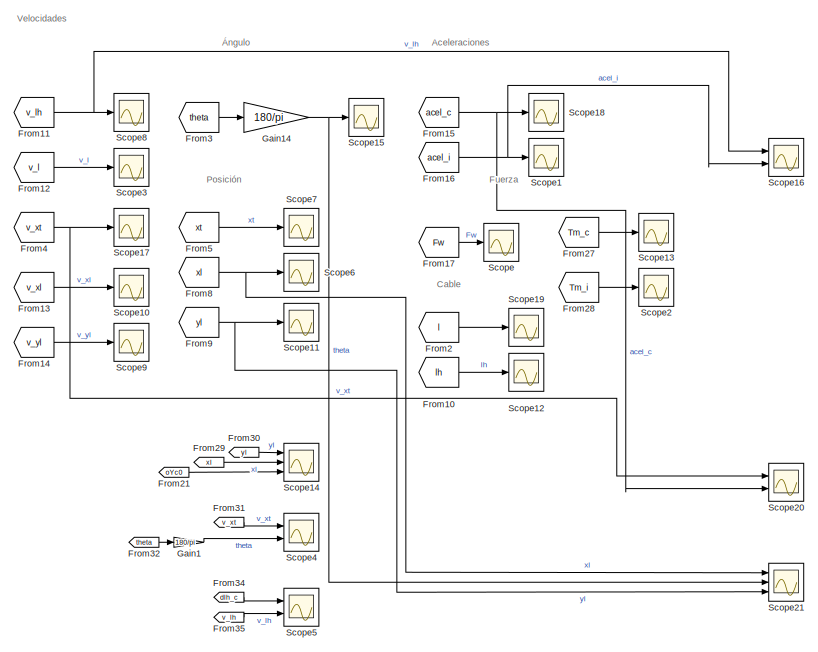
[diagram: root canvas - part 1/2, right side, full height]
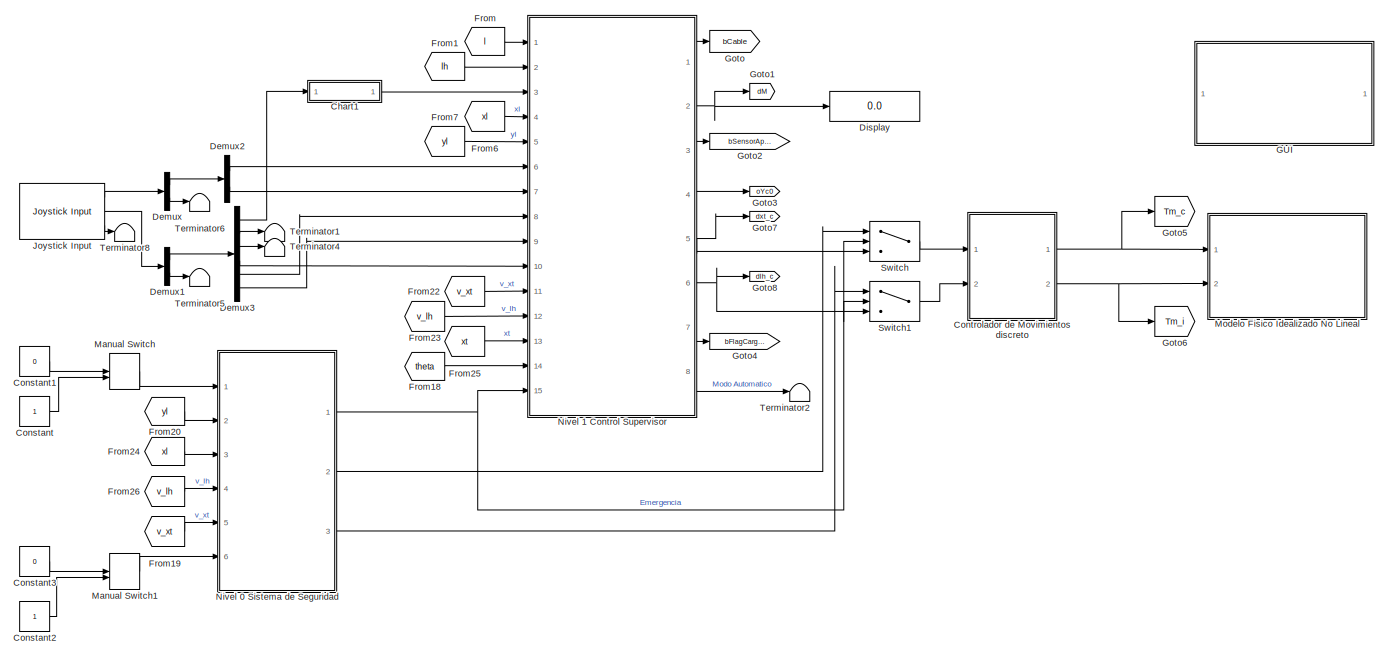
[diagram: root canvas - part 2/2, left side, full height]
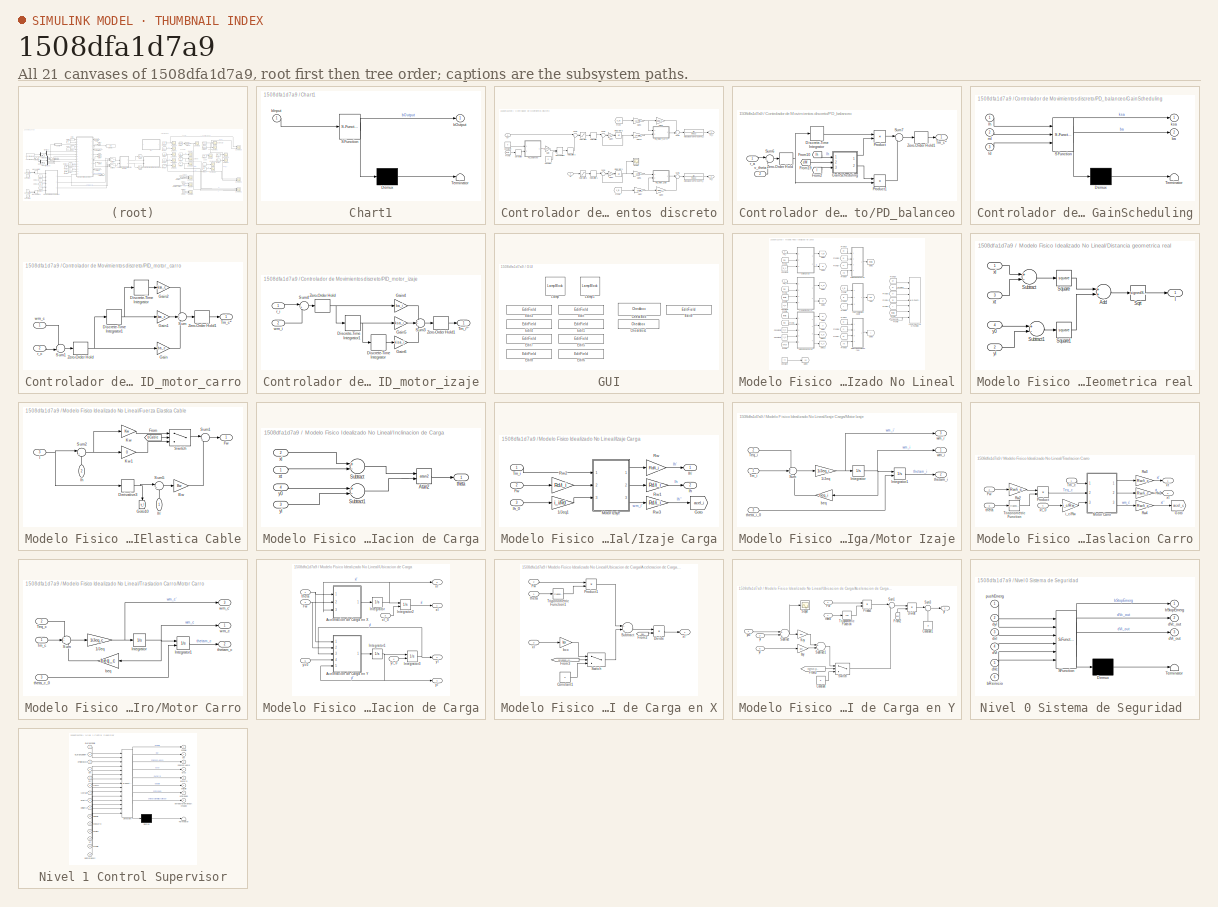
[diagram: thumbnail index - all 21 canvases of the model, root first then tree order]
MODEL slx_1508dfa1d7a9
KIND model
CONFIG AbsTol = auto
CONFIG EnableMultiTasking = off
CONFIG FixedStep = 1e-3
CONFIG MaxStep = auto
CONFIG MinStep = auto
CONFIG RelTol = 1e-3
CONFIG SampleTimeConstraint = Unconstrained
CONFIG Solver = ode4
CONFIG SolverName = ode4
CONFIG StartTime = 0.0
CONFIG StopTime = inf
BLOCK [SubSystem] Chart1
  ErrorFcn = Stateflow.Translate.translate
  PermitHierarchicalResolution = ExplicitOnly
  Ports = [1, 1]
  RequestExecContextInheritance = off
  SFBlockType = Chart
  TreatAsAtomicUnit = on
BLOCK [Demux] Chart1/ Demux 
  Outputs = 1
  Ports = [1, 1]
BLOCK [S-Function] Chart1/ SFunction 
  EnableBusSupport = on
  FunctionName = sf_sfun
  PortCounts = [1 2]
  Ports = [1, 2]
  SFcnIsStateOwnerBlock = off
  SFunctionDeploymentMode = off
  Tag = Stateflow S-Function crane_model 1
BLOCK [Terminator] Chart1/ Terminator 
BLOCK [Inport] Chart1/bInput
  IconDisplay = Port number
BLOCK [Outport] Chart1/bOutput
  IconDisplay = Port number
BLOCK [Constant] Constant
  OutDataTypeStr = boolean
BLOCK [Constant] Constant1
  OutDataTypeStr = boolean
  Value = 0
BLOCK [Constant] Constant2
  OutDataTypeStr = boolean
BLOCK [Constant] Constant3
  OutDataTypeStr = boolean
  Value = 0
BLOCK [SubSystem] Controlador de Movimientos discreto
  Ports = [2, 2]
  RequestExecContextInheritance = off
BLOCK [Constant] Controlador de Movimientos discreto/Constant
  Value = 0
BLOCK [Constant] Controlador de Movimientos discreto/Constant4
  Value = 0
BLOCK [Derivative] Controlador de Movimientos discreto/Derivative
  CoefficientInTFapproximation = 0
BLOCK [From] Controlador de Movimientos discreto/From
  GotoTag = v_xt
  TagVisibility = global
BLOCK [From] Controlador de Movimientos discreto/From1
  GotoTag = v_lh
  TagVisibility = global
BLOCK [From] Controlador de Movimientos discreto/From3
  GotoTag = theta
  TagVisibility = global
BLOCK [Gain] Controlador de Movimientos discreto/Gain
  Gain = 0.8307692307692308
  OutDataTypeStr = Inherit: Inherit via internal rule
  ParamDataTypeStr = Inherit: Inherit via internal rule
  SaturateOnIntegerOverflow = off
BLOCK [Gain] Controlador de Movimientos discreto/Gain10
  Gain = i_c/Rw
  OutDataTypeStr = Inherit: Inherit via internal rule
  ParamDataTypeStr = Inherit: Inherit via internal rule
  SaturateOnIntegerOverflow = off
BLOCK [Gain] Controlador de Movimientos discreto/Gain2
  Gain = 10
  OutDataTypeStr = Inherit: Inherit via internal rule
  ParamDataTypeStr = Inherit: Inherit via internal rule
  SaturateOnIntegerOverflow = off
BLOCK [Gain] Controlador de Movimientos discreto/Gain3
  Gain = i_c/Rw
  OutDataTypeStr = Inherit: Inherit via internal rule
  ParamDataTypeStr = Inherit: Inherit via internal rule
  SaturateOnIntegerOverflow = off
BLOCK [Gain] Controlador de Movimientos discreto/Gain4
  Gain = 20
  OutDataTypeStr = Inherit: Inherit via internal rule
  ParamDataTypeStr = Inherit: Inherit via internal rule
  SaturateOnIntegerOverflow = off
BLOCK [Gain] Controlador de Movimientos discreto/Gain5
  Gain = i_i/Rd
  OutDataTypeStr = Inherit: Inherit via internal rule
  ParamDataTypeStr = Inherit: Inherit via internal rule
  SaturateOnIntegerOverflow = off
BLOCK [Gain] Controlador de Movimientos discreto/Gain7
  Gain = i_i/Rd
  OutDataTypeStr = Inherit: Inherit via internal rule
  ParamDataTypeStr = Inherit: Inherit via internal rule
  SaturateOnIntegerOverflow = off
BLOCK [Gain] Controlador de Movimientos discreto/Gain8
  Gain = beq_c
  OutDataTypeStr = Inherit: Inherit via internal rule
  ParamDataTypeStr = Inherit: Inherit via internal rule
  SaturateOnIntegerOverflow = off
BLOCK [Gain] Controlador de Movimientos discreto/Gain9
  Gain = beq_i
  OutDataTypeStr = Inherit: Inherit via internal rule
  ParamDataTypeStr = Inherit: Inherit via internal rule
  SaturateOnIntegerOverflow = off
BLOCK [Integrator] Controlador de Movimientos discreto/Integrator1
  Ports = [1, 1]
BLOCK [Integrator] Controlador de Movimientos discreto/Integrator5
  Ports = [1, 1]
BLOCK [ManualSwitch] Controlador de Movimientos discreto/Manual Switch
BLOCK [TransferFcn] Controlador de Movimientos discreto/Modulador de Torque Tm_c
  Denominator = [Tau 1]
BLOCK [TransferFcn] Controlador de Movimientos discreto/Modulador de Torque Tm_i
  Denominator = [Tau 1]
BLOCK [SubSystem] Controlador de Movimientos discreto/PD_balanceo
  Ports = [2, 1]
  RequestExecContextInheritance = off
BLOCK [DiscreteIntegrator] Controlador de Movimientos discreto/PD_balanceo/Discrete-Time Integrator
  ICPrevOutput = DiscIntNeverNeededParam
  ICPrevScaledInput = DiscIntNeverNeededParam
  InitialConditionSetting = Auto
  Ports = [1, 1]
  SampleTime = -1
BLOCK [From] Controlador de Movimientos discreto/PD_balanceo/From10
  GotoTag = lh
  TagVisibility = global
BLOCK [From] Controlador de Movimientos discreto/PD_balanceo/From19
  GotoTag = dM
  TagVisibility = global
BLOCK [From] Controlador de Movimientos discreto/PD_balanceo/From2
  GotoTag = l
  TagVisibility = global
BLOCK [SubSystem] Controlador de Movimientos discreto/PD_balanceo/GainScheduling
  ErrorFcn = Stateflow.Translate.translate
  PermitHierarchicalResolution = ExplicitOnly
  Ports = [3, 2]
  RequestExecContextInheritance = off
  SFBlockType = Chart
  TreatAsAtomicUnit = on
BLOCK [Demux] Controlador de Movimientos discreto/PD_balanceo/GainScheduling/ Demux 
  Outputs = 1
  Ports = [1, 1]
BLOCK [S-Function] Controlador de Movimientos discreto/PD_balanceo/GainScheduling/ SFunction 
  EnableBusSupport = on
  FunctionName = sf_sfun
  Parameters = Mt,g
  PortCounts = [3 3]
  Ports = [3, 3]
  SFcnIsStateOwnerBlock = off
  SFunctionDeploymentMode = off
  Tag = Stateflow S-Function crane_model 4
BLOCK [Terminator] Controlador de Movimientos discreto/PD_balanceo/GainScheduling/ Terminator 
BLOCK [Outport] Controlador de Movimientos discreto/PD_balanceo/GainScheduling/ba
  IconDisplay = Port number
  Port = 2
BLOCK [Outport] Controlador de Movimientos discreto/PD_balanceo/GainScheduling/ksa
  IconDisplay = Port number
BLOCK [Inport] Controlador de Movimientos discreto/PD_balanceo/GainScheduling/ld
  IconDisplay = Port number
  Port = 3
BLOCK [Inport] Controlador de Movimientos discreto/PD_balanceo/GainScheduling/lh
  IconDisplay = Port number
BLOCK [Inport] Controlador de Movimientos discreto/PD_balanceo/GainScheduling/ml
  IconDisplay = Port number
  Port = 2
BLOCK [Product] Controlador de Movimientos discreto/PD_balanceo/Product
  InputSameDT = off
  OutDataTypeStr = Inherit: Inherit via internal rule
  Ports = [2, 1]
  RndMeth = Floor
  SaturateOnIntegerOverflow = off
BLOCK [Product] Controlador de Movimientos discreto/PD_balanceo/Product1
  InputSameDT = off
  OutDataTypeStr = Inherit: Inherit via internal rule
  Ports = [2, 1]
  RndMeth = Floor
  SaturateOnIntegerOverflow = off
BLOCK [Sum] Controlador de Movimientos discreto/PD_balanceo/Sum6
  IconShape = round
  InputSameDT = off
  Inputs = |+-
  OutDataTypeStr = Inherit: Inherit via internal rule
  Ports = [2, 1]
  SaturateOnIntegerOverflow = off
BLOCK [Sum] Controlador de Movimientos discreto/PD_balanceo/Sum7
  IconShape = round
  InputSameDT = off
  Inputs = |++
  OutDataTypeStr = Inherit: Inherit via internal rule
  Ports = [2, 1]
  SaturateOnIntegerOverflow = off
BLOCK [Outport] Controlador de Movimientos discreto/PD_balanceo/Tm_c*'
  IconDisplay = Port number
BLOCK [ZeroOrderHold] Controlador de Movimientos discreto/PD_balanceo/Zero-Order Hold
  SampleTime = Ts
BLOCK [ZeroOrderHold] Controlador de Movimientos discreto/PD_balanceo/Zero-Order Hold1
  SampleTime = -1
BLOCK [Inport] Controlador de Movimientos discreto/PD_balanceo/r_a
  IconDisplay = Port number
BLOCK [Inport] Controlador de Movimientos discreto/PD_balanceo/v_theta
  IconDisplay = Port number
  Port = 2
BLOCK [SubSystem] Controlador de Movimientos discreto/PID_motor_carro
  Ports = [2, 1]
  RequestExecContextInheritance = off
BLOCK [DiscreteIntegrator] Controlador de Movimientos discreto/PID_motor_carro/Discrete-Time Integrator
  ICPrevOutput = DiscIntNeverNeededParam
  ICPrevScaledInput = DiscIntNeverNeededParam
  InitialConditionSetting = Auto
  Ports = [1, 1]
  SampleTime = -1
BLOCK [DiscreteIntegrator] Controlador de Movimientos discreto/PID_motor_carro/Discrete-Time Integrator1
  ICPrevOutput = DiscIntNeverNeededParam
  ICPrevScaledInput = DiscIntNeverNeededParam
  InitialConditionSetting = Auto
  Ports = [1, 1]
  SampleTime = -1
BLOCK [Gain] Controlador de Movimientos discreto/PID_motor_carro/Gain
  Gain = ba_c
  OutDataTypeStr = Inherit: Inherit via internal rule
  ParamDataTypeStr = Inherit: Inherit via internal rule
  SaturateOnIntegerOverflow = off
BLOCK [Gain] Controlador de Movimientos discreto/PID_motor_carro/Gain1
  Gain = ksa_c
  OutDataTypeStr = Inherit: Inherit via internal rule
  ParamDataTypeStr = Inherit: Inherit via internal rule
  SaturateOnIntegerOverflow = off
BLOCK [Gain] Controlador de Movimientos discreto/PID_motor_carro/Gain2
  Gain = kisa_c
  OutDataTypeStr = Inherit: Inherit via internal rule
  ParamDataTypeStr = Inherit: Inherit via internal rule
  SaturateOnIntegerOverflow = off
BLOCK [Sum] Controlador de Movimientos discreto/PID_motor_carro/Sum
  IconShape = round
  InputSameDT = off
  Inputs = +++
  OutDataTypeStr = Inherit: Inherit via internal rule
  Ports = [3, 1]
  SaturateOnIntegerOverflow = off
BLOCK [Sum] Controlador de Movimientos discreto/PID_motor_carro/Sum1
  IconShape = round
  InputSameDT = off
  Inputs = -+|
  OutDataTypeStr = Inherit: Inherit via internal rule
  Ports = [2, 1]
  SaturateOnIntegerOverflow = off
BLOCK [Outport] Controlador de Movimientos discreto/PID_motor_carro/Tm_c*'
  IconDisplay = Port number
BLOCK [ZeroOrderHold] Controlador de Movimientos discreto/PID_motor_carro/Zero-Order Hold
  SampleTime = Ts
BLOCK [ZeroOrderHold] Controlador de Movimientos discreto/PID_motor_carro/Zero-Order Hold1
  SampleTime = -1
BLOCK [Inport] Controlador de Movimientos discreto/PID_motor_carro/r_c
  IconDisplay = Port number
  Port = 2
BLOCK [Inport] Controlador de Movimientos discreto/PID_motor_carro/wm_c
  IconDisplay = Port number
BLOCK [SubSystem] Controlador de Movimientos discreto/PID_motor_izaje
  Ports = [2, 1]
  RequestExecContextInheritance = off
BLOCK [DiscreteIntegrator] Controlador de Movimientos discreto/PID_motor_izaje/Discrete-Time Integrator
  ICPrevOutput = DiscIntNeverNeededParam
  ICPrevScaledInput = DiscIntNeverNeededParam
  InitialConditionSetting = Auto
  Ports = [1, 1]
  SampleTime = -1
BLOCK [DiscreteIntegrator] Controlador de Movimientos discreto/PID_motor_izaje/Discrete-Time Integrator1
  ICPrevOutput = DiscIntNeverNeededParam
  ICPrevScaledInput = DiscIntNeverNeededParam
  InitialConditionSetting = Auto
  Ports = [1, 1]
  SampleTime = -1
BLOCK [Gain] Controlador de Movimientos discreto/PID_motor_izaje/Gain4
  Gain = ba_i
  OutDataTypeStr = Inherit: Inherit via internal rule
  ParamDataTypeStr = Inherit: Inherit via internal rule
  SaturateOnIntegerOverflow = off
BLOCK [Gain] Controlador de Movimientos discreto/PID_motor_izaje/Gain5
  Gain = ksa_i
  OutDataTypeStr = Inherit: Inherit via internal rule
  ParamDataTypeStr = Inherit: Inherit via internal rule
  SaturateOnIntegerOverflow = off
BLOCK [Gain] Controlador de Movimientos discreto/PID_motor_izaje/Gain6
  Gain = kisa_i
  OutDataTypeStr = Inherit: Inherit via internal rule
  ParamDataTypeStr = Inherit: Inherit via internal rule
  SaturateOnIntegerOverflow = off
BLOCK [Sum] Controlador de Movimientos discreto/PID_motor_izaje/Sum3
  IconShape = round
  InputSameDT = off
  Inputs = +++
  OutDataTypeStr = Inherit: Inherit via internal rule
  Ports = [3, 1]
  SaturateOnIntegerOverflow = off
BLOCK [Sum] Controlador de Movimientos discreto/PID_motor_izaje/Sum4
  IconShape = round
  InputSameDT = off
  Inputs = |+-
  OutDataTypeStr = Inherit: Inherit via internal rule
  Ports = [2, 1]
  SaturateOnIntegerOverflow = off
BLOCK [Outport] Controlador de Movimientos discreto/PID_motor_izaje/Tm_i*'
  IconDisplay = Port number
BLOCK [ZeroOrderHold] Controlador de Movimientos discreto/PID_motor_izaje/Zero-Order Hold
  SampleTime = Ts
BLOCK [ZeroOrderHold] Controlador de Movimientos discreto/PID_motor_izaje/Zero-Order Hold1
  SampleTime = -1
BLOCK [Inport] Controlador de Movimientos discreto/PID_motor_izaje/r_i
  IconDisplay = Port number
BLOCK [Inport] Controlador de Movimientos discreto/PID_motor_izaje/wm_i
  IconDisplay = Port number
  Port = 2
BLOCK [RateLimiter] Controlador de Movimientos discreto/Rate Limiter
  LinearizeAsGain = off
BLOCK [RateLimiter] Controlador de Movimientos discreto/Rate Limiter1
  LinearizeAsGain = off
BLOCK [RateLimiter] Controlador de Movimientos discreto/Rate Limiter2
  FallingSlewLimit = -3
  LinearizeAsGain = off
  RisingSlewLimit = 3
BLOCK [Saturate] Controlador de Movimientos discreto/Saturation
  InputPortMap = u0
  LowerLimit = -4
  Ports = [1, 1]
  UpperLimit = 4
BLOCK [Saturate] Controlador de Movimientos discreto/Saturation1
  InputPortMap = u0
  LowerLimit = -3
  Ports = [1, 1]
  UpperLimit = 3
BLOCK [Scope] Controlador de Movimientos discreto/Scope
  Floating = off
  NumInputPorts = 1
  Ports = [1]
  ScopeSpecificationString = Simulink.scopes.TimeScopeBlockCfg('CurrentConfiguration', extmgr.ConfigurationSet(extmgr.Configuration('Core','General UI',true),extmgr.Configuration('Core','Source UI',true),extmgr.Configuration('Sources','WiredSimulink',true,'DataLoggingVariableName','ScopeData1'),extmgr.Configuration('Visuals','Time Domain',true,'SerializedDisplays',{struct('MinYLimReal','-3.75','MaxYLimReal','3.75','YLabelReal...<+1396ch>
BLOCK [Sum] Controlador de Movimientos discreto/Sum1
  IconShape = round
  InputSameDT = off
  Inputs = |+-
  OutDataTypeStr = Inherit: Inherit via internal rule
  Ports = [2, 1]
  SaturateOnIntegerOverflow = off
BLOCK [Sum] Controlador de Movimientos discreto/Sum2
  IconShape = round
  InputSameDT = off
  Inputs = ++|
  OutDataTypeStr = Inherit: Inherit via internal rule
  Ports = [2, 1]
  SaturateOnIntegerOverflow = off
BLOCK [Sum] Controlador de Movimientos discreto/Sum3
  IconShape = round
  InputSameDT = off
  Inputs = |+-
  OutDataTypeStr = Inherit: Inherit via internal rule
  Ports = [2, 1]
  SaturateOnIntegerOverflow = off
BLOCK [Sum] Controlador de Movimientos discreto/Sum4
  IconShape = round
  InputSameDT = off
  Inputs = |+-
  OutDataTypeStr = Inherit: Inherit via internal rule
  Ports = [2, 1]
  SaturateOnIntegerOverflow = off
BLOCK [Sum] Controlador de Movimientos discreto/Sum5
  IconShape = round
  InputSameDT = off
  Inputs = |++
  OutDataTypeStr = Inherit: Inherit via internal rule
  Ports = [2, 1]
  SaturateOnIntegerOverflow = off
BLOCK [Outport] Controlador de Movimientos discreto/Tm_c
  IconDisplay = Port number
BLOCK [Outport] Controlador de Movimientos discreto/Tm_i
  IconDisplay = Port number
  Port = 2
BLOCK [Inport] Controlador de Movimientos discreto/Vc*
  IconDisplay = Port number
BLOCK [Inport] Controlador de Movimientos discreto/Vi*
  IconDisplay = Port number
  Port = 2
BLOCK [Demux] Demux
  DisplayOption = bar
  Outputs = 2
  Ports = [1, 2]
BLOCK [Demux] Demux1
  DisplayOption = bar
  Outputs = 2
  Ports = [1, 2]
BLOCK [Demux] Demux2
  DisplayOption = bar
  Outputs = 2
  Ports = [1, 2]
BLOCK [Demux] Demux3
  DisplayOption = bar
  Outputs = 6
  Ports = [1, 6]
BLOCK [Display] Display
  Decimation = 1
  Ports = [1]
BLOCK [From] From
  GotoTag = l
  TagVisibility = global
BLOCK [From] From1
  GotoTag = lh
  TagVisibility = global
BLOCK [From] From10
  GotoTag = lh
  TagVisibility = global
BLOCK [From] From11
  GotoTag = v_lh
  TagVisibility = global
BLOCK [From] From12
  GotoTag = v_l
  TagVisibility = global
BLOCK [From] From13
  GotoTag = v_xl
  TagVisibility = global
BLOCK [From] From14
  GotoTag = v_yl
  TagVisibility = global
BLOCK [From] From15
  GotoTag = acel_c
  TagVisibility = global
BLOCK [From] From16
  GotoTag = acel_i
  TagVisibility = global
BLOCK [From] From17
  GotoTag = Fw
  TagVisibility = global
BLOCK [From] From18
  GotoTag = theta
  TagVisibility = global
BLOCK [From] From19
  GotoTag = v_xt
  TagVisibility = global
BLOCK [From] From2
  GotoTag = l
  TagVisibility = global
BLOCK [From] From20
  GotoTag = yl
  TagVisibility = global
BLOCK [From] From21
  GotoTag = oYc0
  TagVisibility = global
BLOCK [From] From22
  GotoTag = v_xt
  TagVisibility = global
BLOCK [From] From23
  GotoTag = v_lh
  TagVisibility = global
BLOCK [From] From24
  GotoTag = xl
  TagVisibility = global
BLOCK [From] From25
  GotoTag = xt
  TagVisibility = global
BLOCK [From] From26
  GotoTag = v_lh
  TagVisibility = global
BLOCK [From] From27
  GotoTag = Tm_c
  TagVisibility = global
BLOCK [From] From28
  GotoTag = Tm_i
  TagVisibility = global
BLOCK [From] From29
  GotoTag = xl
  TagVisibility = global
BLOCK [From] From3
  GotoTag = theta
  TagVisibility = global
BLOCK [From] From30
  GotoTag = yl
  TagVisibility = global
BLOCK [From] From31
  GotoTag = v_xt
  TagVisibility = global
BLOCK [From] From32
  GotoTag = theta
  TagVisibility = global
BLOCK [From] From34
  GotoTag = dlh_c
  TagVisibility = global
BLOCK [From] From35
  GotoTag = v_lh
  TagVisibility = global
BLOCK [From] From4
  GotoTag = v_xt
  TagVisibility = global
BLOCK [From] From5
  GotoTag = xt
  TagVisibility = global
BLOCK [From] From6
  GotoTag = xl
  TagVisibility = global
BLOCK [From] From7
  GotoTag = yl
  TagVisibility = global
BLOCK [From] From8
  GotoTag = xl
  TagVisibility = global
BLOCK [From] From9
  GotoTag = yl
  TagVisibility = global
BLOCK [SubSystem] GUI
  Ports = []
  RequestExecContextInheritance = off
BLOCK [Checkbox] GUI/Check Box
  Label = bPosObjetivoIncremental
  LabelPosition = Hide
  ShowInitialText = on
  WebBlockId = 905
BLOCK [Checkbox] GUI/Check Box1
  Label = bCargaDescarga
  LabelPosition = Hide
  ShowInitialText = on
  WebBlockId = 977
BLOCK [EditField] GUI/Edit
  Alignment = Center
  ShowInitialText = on
  WebBlockId = 901
BLOCK [EditField] GUI/Edit1
  Alignment = Center
  ShowInitialText = on
  WebBlockId = 902
BLOCK [EditField] GUI/Edit3
  Alignment = Center
  ShowInitialText = on
  WebBlockId = 908
BLOCK [EditField] GUI/Edit4
  Alignment = Center
  ShowInitialText = on
  WebBlockId = 909
BLOCK [EditField] GUI/Edit5
  Alignment = Center
  ShowInitialText = on
  WebBlockId = 978
BLOCK [EditField] GUI/Edit6
  Alignment = Center
  ShowInitialText = on
  WebBlockId = 979
BLOCK [EditField] GUI/Edit7
  Alignment = Center
  ShowInitialText = on
  WebBlockId = 980
BLOCK [EditField] GUI/Edit8
  Alignment = Center
  ShowInitialText = on
  WebBlockId = 981
BLOCK [EditField] GUI/Edit9
  Alignment = Center
  ShowInitialText = on
  WebBlockId = 1028
BLOCK [LampBlock] GUI/Lamp
  WebBlockId = 1012
BLOCK [LampBlock] GUI/Lamp1
  WebBlockId = 1029
BLOCK [Gain] Gain1
  Gain = 180/pi
  OutDataTypeStr = Inherit: Inherit via internal rule
  ParamDataTypeStr = Inherit: Inherit via internal rule
  SaturateOnIntegerOverflow = off
BLOCK [Gain] Gain14
  Gain = 180/pi
  OutDataTypeStr = Inherit: Inherit via internal rule
  ParamDataTypeStr = Inherit: Inherit via internal rule
  SaturateOnIntegerOverflow = off
BLOCK [Goto] Goto
  GotoTag = bCable
  TagVisibility = global
BLOCK [Goto] Goto1
  GotoTag = dM
  TagVisibility = global
BLOCK [Goto] Goto2
  GotoTag = bSensorApoyo
  TagVisibility = global
BLOCK [Goto] Goto3
  GotoTag = oYc0
  TagVisibility = global
BLOCK [Goto] Goto4
  GotoTag = bFlagCargado
  TagVisibility = global
BLOCK [Goto] Goto5
  GotoTag = Tm_c
  TagVisibility = global
BLOCK [Goto] Goto6
  GotoTag = Tm_i
  TagVisibility = global
BLOCK [Goto] Goto7
  GotoTag = dxt_c
  TagVisibility = global
BLOCK [Goto] Goto8
  GotoTag = dlh_c
  TagVisibility = global
BLOCK [Reference] Joystick Input  REF=vrlib/Joystick Input
  Ports = [0, 3]
  SourceBlock = vrlib/Joystick Input
  SourceProductBaseCode = VR
  SourceProductName = Simulink 3D Animation
  SourceType = Joystick Input
BLOCK [ManualSwitch] Manual Switch
BLOCK [ManualSwitch] Manual Switch1
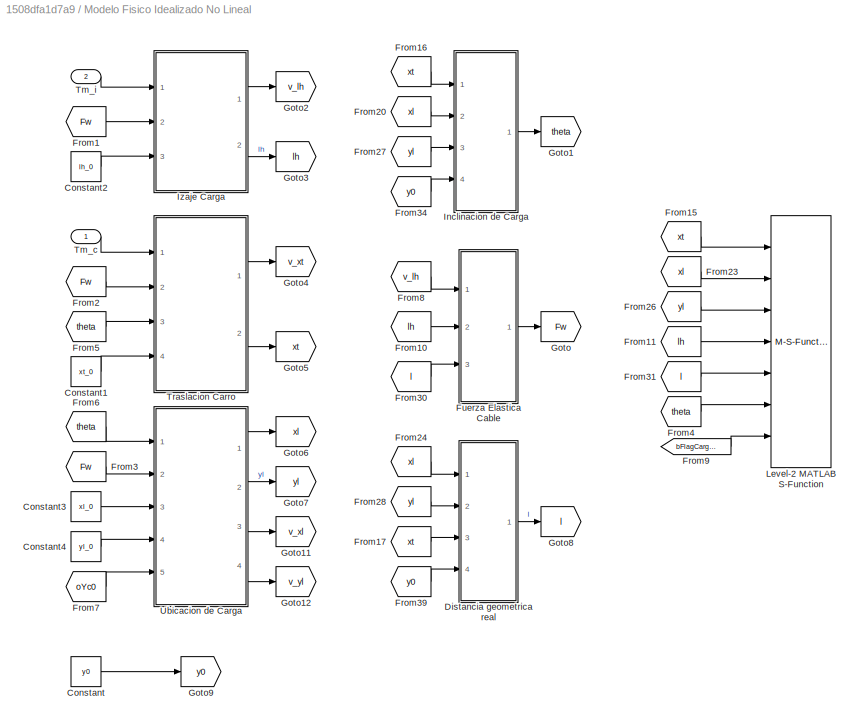
BLOCK [SubSystem] Modelo Fisico Idealizado No Lineal
  Ports = [2]
  RequestExecContextInheritance = off
BLOCK [Constant] Modelo Fisico Idealizado No Lineal/Constant
  Value = y0
BLOCK [Constant] Modelo Fisico Idealizado No Lineal/Constant1
  Value = xt_0
BLOCK [Constant] Modelo Fisico Idealizado No Lineal/Constant2
  Value = lh_0
BLOCK [Constant] Modelo Fisico Idealizado No Lineal/Constant3
  Value = xl_0
BLOCK [Constant] Modelo Fisico Idealizado No Lineal/Constant4
  Value = yl_0
BLOCK [SubSystem] Modelo Fisico Idealizado No Lineal/Distancia geometrica real
  Ports = [4, 1]
  RequestExecContextInheritance = off
BLOCK [Sum] Modelo Fisico Idealizado No Lineal/Distancia geometrica real/Add
  InputSameDT = off
  OutDataTypeStr = Inherit: Inherit via internal rule
  Ports = [2, 1]
  SaturateOnIntegerOverflow = off
BLOCK [Sqrt] Modelo Fisico Idealizado No Lineal/Distancia geometrica real/Sqrt
  Operator = signedSqrt
BLOCK [Math] Modelo Fisico Idealizado No Lineal/Distancia geometrica real/Square
  Operator = square
  Ports = [1, 1]
BLOCK [Math] Modelo Fisico Idealizado No Lineal/Distancia geometrica real/Square1
  Operator = square
  Ports = [1, 1]
BLOCK [Sum] Modelo Fisico Idealizado No Lineal/Distancia geometrica real/Subtract
  InputSameDT = off
  Inputs = +-
  OutDataTypeStr = Inherit: Inherit via internal rule
  Ports = [2, 1]
  SaturateOnIntegerOverflow = off
BLOCK [Sum] Modelo Fisico Idealizado No Lineal/Distancia geometrica real/Subtract1
  InputSameDT = off
  Inputs = +-
  OutDataTypeStr = Inherit: Inherit via internal rule
  Ports = [2, 1]
  SaturateOnIntegerOverflow = off
BLOCK [Outport] Modelo Fisico Idealizado No Lineal/Distancia geometrica real/l
  IconDisplay = Port number
BLOCK [Inport] Modelo Fisico Idealizado No Lineal/Distancia geometrica real/xl
  IconDisplay = Port number
BLOCK [Inport] Modelo Fisico Idealizado No Lineal/Distancia geometrica real/xt
  IconDisplay = Port number
  Port = 3
BLOCK [Inport] Modelo Fisico Idealizado No Lineal/Distancia geometrica real/y0
  IconDisplay = Port number
  Port = 4
BLOCK [Inport] Modelo Fisico Idealizado No Lineal/Distancia geometrica real/yl
  IconDisplay = Port number
  Port = 2
BLOCK [From] Modelo Fisico Idealizado No Lineal/From1
  GotoTag = Fw
  TagVisibility = global
BLOCK [From] Modelo Fisico Idealizado No Lineal/From10
  GotoTag = lh
  TagVisibility = global
BLOCK [From] Modelo Fisico Idealizado No Lineal/From11
  GotoTag = lh
  TagVisibility = global
BLOCK [From] Modelo Fisico Idealizado No Lineal/From15
  GotoTag = xt
  TagVisibility = global
BLOCK [From] Modelo Fisico Idealizado No Lineal/From16
  GotoTag = xt
  TagVisibility = global
BLOCK [From] Modelo Fisico Idealizado No Lineal/From17
  GotoTag = xt
  TagVisibility = global
BLOCK [From] Modelo Fisico Idealizado No Lineal/From2
  GotoTag = Fw
  TagVisibility = global
BLOCK [From] Modelo Fisico Idealizado No Lineal/From20
  GotoTag = xl
  TagVisibility = global
BLOCK [From] Modelo Fisico Idealizado No Lineal/From23
  GotoTag = xl
  TagVisibility = global
BLOCK [From] Modelo Fisico Idealizado No Lineal/From24
  GotoTag = xl
  TagVisibility = global
BLOCK [From] Modelo Fisico Idealizado No Lineal/From26
  GotoTag = yl
  TagVisibility = global
BLOCK [From] Modelo Fisico Idealizado No Lineal/From27
  GotoTag = yl
  TagVisibility = global
BLOCK [From] Modelo Fisico Idealizado No Lineal/From28
  GotoTag = yl
  TagVisibility = global
BLOCK [From] Modelo Fisico Idealizado No Lineal/From3
  GotoTag = Fw
  TagVisibility = global
BLOCK [From] Modelo Fisico Idealizado No Lineal/From30
  GotoTag = l
  TagVisibility = global
BLOCK [From] Modelo Fisico Idealizado No Lineal/From31
  GotoTag = l
  TagVisibility = global
BLOCK [From] Modelo Fisico Idealizado No Lineal/From34
  GotoTag = y0
  TagVisibility = global
BLOCK [From] Modelo Fisico Idealizado No Lineal/From39
  GotoTag = y0
  TagVisibility = global
BLOCK [From] Modelo Fisico Idealizado No Lineal/From4
  GotoTag = theta
  TagVisibility = global
BLOCK [From] Modelo Fisico Idealizado No Lineal/From5
  GotoTag = theta
  TagVisibility = global
BLOCK [From] Modelo Fisico Idealizado No Lineal/From6
  GotoTag = theta
  TagVisibility = global
BLOCK [From] Modelo Fisico Idealizado No Lineal/From7
  GotoTag = oYc0
  TagVisibility = global
BLOCK [From] Modelo Fisico Idealizado No Lineal/From8
  GotoTag = v_lh
  TagVisibility = global
BLOCK [From] Modelo Fisico Idealizado No Lineal/From9
  GotoTag = bFlagCargado
  TagVisibility = global
BLOCK [SubSystem] Modelo Fisico Idealizado No Lineal/Fuerza Elastica Cable
  Ports = [3, 1]
  RequestExecContextInheritance = off
BLOCK [Gain] Modelo Fisico Idealizado No Lineal/Fuerza Elastica Cable/Bw
  Gain = Bw
  OutDataTypeStr = Inherit: Inherit via internal rule
  ParamDataTypeStr = Inherit: Inherit via internal rule
  SaturateOnIntegerOverflow = off
BLOCK [Derivative] Modelo Fisico Idealizado No Lineal/Fuerza Elastica Cable/Derivative3
BLOCK [From] Modelo Fisico Idealizado No Lineal/Fuerza Elastica Cable/From
  GotoTag = bCable
  TagVisibility = global
BLOCK [Outport] Modelo Fisico Idealizado No Lineal/Fuerza Elastica Cable/Fw
  IconDisplay = Port number
BLOCK [Goto] Modelo Fisico Idealizado No Lineal/Fuerza Elastica Cable/Goto10
  GotoTag = v_l
  TagVisibility = global
BLOCK [Gain] Modelo Fisico Idealizado No Lineal/Fuerza Elastica Cable/Kw
  Gain = Kw
  OutDataTypeStr = Inherit: Inherit via internal rule
  ParamDataTypeStr = Inherit: Inherit via internal rule
  SaturateOnIntegerOverflow = off
BLOCK [Gain] Modelo Fisico Idealizado No Lineal/Fuerza Elastica Cable/Kw1
  Gain = 0
  OutDataTypeStr = Inherit: Inherit via internal rule
  ParamDataTypeStr = Inherit: Inherit via internal rule
  SaturateOnIntegerOverflow = off
BLOCK [Sum] Modelo Fisico Idealizado No Lineal/Fuerza Elastica Cable/Sum1
  IconShape = round
  InputSameDT = off
  Inputs = |++
  OutDataTypeStr = Inherit: Inherit via internal rule
  Ports = [2, 1]
  SaturateOnIntegerOverflow = off
BLOCK [Sum] Modelo Fisico Idealizado No Lineal/Fuerza Elastica Cable/Sum2
  IconShape = round
  InputSameDT = off
  Inputs = |+-
  OutDataTypeStr = Inherit: Inherit via internal rule
  Ports = [2, 1]
  SaturateOnIntegerOverflow = off
BLOCK [Sum] Modelo Fisico Idealizado No Lineal/Fuerza Elastica Cable/Sum5
  IconShape = round
  InputSameDT = off
  Inputs = |+-
  OutDataTypeStr = Inherit: Inherit via internal rule
  Ports = [2, 1]
  SaturateOnIntegerOverflow = off
BLOCK [Switch] Modelo Fisico Idealizado No Lineal/Fuerza Elastica Cable/Switch
  Criteria = u2 ~= 0
  InputSameDT = off
  SaturateOnIntegerOverflow = off
BLOCK [Inport] Modelo Fisico Idealizado No Lineal/Fuerza Elastica Cable/l
  IconDisplay = Port number
  Port = 3
BLOCK [Inport] Modelo Fisico Idealizado No Lineal/Fuerza Elastica Cable/lh
  IconDisplay = Port number
  Port = 2
BLOCK [Inport] Modelo Fisico Idealizado No Lineal/Fuerza Elastica Cable/lh'
  IconDisplay = Port number
BLOCK [Goto] Modelo Fisico Idealizado No Lineal/Goto
  GotoTag = Fw
  TagVisibility = global
BLOCK [Goto] Modelo Fisico Idealizado No Lineal/Goto1
  GotoTag = theta
  TagVisibility = global
BLOCK [Goto] Modelo Fisico Idealizado No Lineal/Goto11
  GotoTag = v_xl
  TagVisibility = global
BLOCK [Goto] Modelo Fisico Idealizado No Lineal/Goto12
  GotoTag = v_yl
  TagVisibility = global
BLOCK [Goto] Modelo Fisico Idealizado No Lineal/Goto2
  GotoTag = v_lh
  TagVisibility = global
BLOCK [Goto] Modelo Fisico Idealizado No Lineal/Goto3
  GotoTag = lh
  TagVisibility = global
BLOCK [Goto] Modelo Fisico Idealizado No Lineal/Goto4
  GotoTag = v_xt
  TagVisibility = global
BLOCK [Goto] Modelo Fisico Idealizado No Lineal/Goto5
  GotoTag = xt
  TagVisibility = global
BLOCK [Goto] Modelo Fisico Idealizado No Lineal/Goto6
  GotoTag = xl
  TagVisibility = global
BLOCK [Goto] Modelo Fisico Idealizado No Lineal/Goto7
  GotoTag = yl
  TagVisibility = global
BLOCK [Goto] Modelo Fisico Idealizado No Lineal/Goto8
  GotoTag = l
  TagVisibility = global
BLOCK [Goto] Modelo Fisico Idealizado No Lineal/Goto9
  GotoTag = y0
  TagVisibility = global
BLOCK [SubSystem] Modelo Fisico Idealizado No Lineal/Inclinacion de Carga
  Ports = [4, 1]
  RequestExecContextInheritance = off
BLOCK [Trigonometry] Modelo Fisico Idealizado No Lineal/Inclinacion de Carga/Atan2
  Operator = atan2
  Ports = [2, 1]
BLOCK [Sum] Modelo Fisico Idealizado No Lineal/Inclinacion de Carga/Subtract
  InputSameDT = off
  Inputs = +-
  OutDataTypeStr = Inherit: Inherit via internal rule
  Ports = [2, 1]
  SaturateOnIntegerOverflow = off
BLOCK [Sum] Modelo Fisico Idealizado No Lineal/Inclinacion de Carga/Subtract1
  InputSameDT = off
  Inputs = +-
  OutDataTypeStr = Inherit: Inherit via internal rule
  Ports = [2, 1]
  SaturateOnIntegerOverflow = off
BLOCK [Outport] Modelo Fisico Idealizado No Lineal/Inclinacion de Carga/theta
  IconDisplay = Port number
BLOCK [Inport] Modelo Fisico Idealizado No Lineal/Inclinacion de Carga/xl
  IconDisplay = Port number
  Port = 2
BLOCK [Inport] Modelo Fisico Idealizado No Lineal/Inclinacion de Carga/xt
  IconDisplay = Port number
BLOCK [Inport] Modelo Fisico Idealizado No Lineal/Inclinacion de Carga/y0
  IconDisplay = Port number
  Port = 4
BLOCK [Inport] Modelo Fisico Idealizado No Lineal/Inclinacion de Carga/yl
  IconDisplay = Port number
  Port = 3
BLOCK [SubSystem] Modelo Fisico Idealizado No Lineal/Izaje Carga
  Ports = [3, 2]
  RequestExecContextInheritance = off
BLOCK [Gain] Modelo Fisico Idealizado No Lineal/Izaje Carga/1//Jeq1
  Gain = i_i/Rd
  OutDataTypeStr = Inherit: Inherit via internal rule
  ParamDataTypeStr = Inherit: Inherit via internal rule
  SaturateOnIntegerOverflow = off
BLOCK [Inport] Modelo Fisico Idealizado No Lineal/Izaje Carga/Fw
  IconDisplay = Port number
  Port = 2
BLOCK [Goto] Modelo Fisico Idealizado No Lineal/Izaje Carga/Goto
  GotoTag = acel_i
  TagVisibility = global
BLOCK [SubSystem] Modelo Fisico Idealizado No Lineal/Izaje Carga/Motor Izaje
  Ports = [3, 3]
  RequestExecContextInheritance = off
BLOCK [Gain] Modelo Fisico Idealizado No Lineal/Izaje Carga/Motor Izaje/1//Jeq
  Gain = 1/Jeq_i
  OutDataTypeStr = Inherit: Inherit via internal rule
  ParamDataTypeStr = Inherit: Inherit via internal rule
  SaturateOnIntegerOverflow = off
BLOCK [Integrator] Modelo Fisico Idealizado No Lineal/Izaje Carga/Motor Izaje/Integrator
  Ports = [1, 1]
BLOCK [Integrator] Modelo Fisico Idealizado No Lineal/Izaje Carga/Motor Izaje/Integrator1
  InitialConditionSource = external
  Ports = [2, 1]
BLOCK [Sum] Modelo Fisico Idealizado No Lineal/Izaje Carga/Motor Izaje/Sum
  IconShape = round
  InputSameDT = off
  Inputs = ++-
  OutDataTypeStr = Inherit: Inherit via internal rule
  Ports = [3, 1]
  SaturateOnIntegerOverflow = off
BLOCK [Inport] Modelo Fisico Idealizado No Lineal/Izaje Carga/Motor Izaje/Teq_i
  IconDisplay = Port number
  Port = 2
BLOCK [Inport] Modelo Fisico Idealizado No Lineal/Izaje Carga/Motor Izaje/Tm_i
  IconDisplay = Port number
BLOCK [Gain] Modelo Fisico Idealizado No Lineal/Izaje Carga/Motor Izaje/beq
  Gain = beq_i
  OutDataTypeStr = Inherit: Inherit via internal rule
  ParamDataTypeStr = Inherit: Inherit via internal rule
  SaturateOnIntegerOverflow = off
BLOCK [Inport] Modelo Fisico Idealizado No Lineal/Izaje Carga/Motor Izaje/theta_i_0
  IconDisplay = Port number
  Port = 3
BLOCK [Outport] Modelo Fisico Idealizado No Lineal/Izaje Carga/Motor Izaje/thetam_i
  IconDisplay = Port number
  Port = 2
BLOCK [Outport] Modelo Fisico Idealizado No Lineal/Izaje Carga/Motor Izaje/wm_i
  IconDisplay = Port number
BLOCK [Outport] Modelo Fisico Idealizado No Lineal/Izaje Carga/Motor Izaje/wm_i'
  IconDisplay = Port number
  Port = 3
BLOCK [Gain] Modelo Fisico Idealizado No Lineal/Izaje Carga/Rw
  Gain = Rd/i_i
  OutDataTypeStr = Inherit: Inherit via internal rule
  ParamDataTypeStr = Inherit: Inherit via internal rule
  SaturateOnIntegerOverflow = off
BLOCK [Gain] Modelo Fisico Idealizado No Lineal/Izaje Carga/Rw1
  Gain = Rd/i_i
  OutDataTypeStr = Inherit: Inherit via internal rule
  ParamDataTypeStr = Inherit: Inherit via internal rule
  SaturateOnIntegerOverflow = off
BLOCK [Gain] Modelo Fisico Idealizado No Lineal/Izaje Carga/Rw2
  Gain = Rd/i_i
  OutDataTypeStr = Inherit: Inherit via internal rule
  ParamDataTypeStr = Inherit: Inherit via internal rule
  SaturateOnIntegerOverflow = off
BLOCK [Gain] Modelo Fisico Idealizado No Lineal/Izaje Carga/Rw3
  Gain = Rd/i_i
  OutDataTypeStr = Inherit: Inherit via internal rule
  ParamDataTypeStr = Inherit: Inherit via internal rule
  SaturateOnIntegerOverflow = off
BLOCK [Inport] Modelo Fisico Idealizado No Lineal/Izaje Carga/Tm_i
  IconDisplay = Port number
BLOCK [Outport] Modelo Fisico Idealizado No Lineal/Izaje Carga/lh
  IconDisplay = Port number
  Port = 2
BLOCK [Outport] Modelo Fisico Idealizado No Lineal/Izaje Carga/lh'
  IconDisplay = Port number
BLOCK [Inport] Modelo Fisico Idealizado No Lineal/Izaje Carga/lh_0
  IconDisplay = Port number
  Port = 3
BLOCK [M-S-Function] Modelo Fisico Idealizado No Lineal/Level-2 MATLAB S-Function
  FunctionName = craneVI
  Parameters = xl_0, yl_0, h, w, xdisc, nCont
  Ports = [7]
BLOCK [Inport] Modelo Fisico Idealizado No Lineal/Tm_c
  IconDisplay = Port number
BLOCK [Inport] Modelo Fisico Idealizado No Lineal/Tm_i
  IconDisplay = Port number
  Port = 2
BLOCK [SubSystem] Modelo Fisico Idealizado No Lineal/Traslacion Carro
  Ports = [4, 2]
  RequestExecContextInheritance = off
BLOCK [Inport] Modelo Fisico Idealizado No Lineal/Traslacion Carro/Fw
  IconDisplay = Port number
  Port = 2
BLOCK [Goto] Modelo Fisico Idealizado No Lineal/Traslacion Carro/Goto
  GotoTag = acel_c
  TagVisibility = global
BLOCK [SubSystem] Modelo Fisico Idealizado No Lineal/Traslacion Carro/Motor Carro
  Ports = [3, 3]
  RequestExecContextInheritance = off
BLOCK [Gain] Modelo Fisico Idealizado No Lineal/Traslacion Carro/Motor Carro/1//Jeq
  Gain = 1/Jeq_c
  OutDataTypeStr = Inherit: Inherit via internal rule
  ParamDataTypeStr = Inherit: Inherit via internal rule
  SaturateOnIntegerOverflow = off
BLOCK [Integrator] Modelo Fisico Idealizado No Lineal/Traslacion Carro/Motor Carro/Integrator
  Ports = [1, 1]
BLOCK [Integrator] Modelo Fisico Idealizado No Lineal/Traslacion Carro/Motor Carro/Integrator1
  InitialConditionSource = external
  Ports = [2, 1]
BLOCK [Sum] Modelo Fisico Idealizado No Lineal/Traslacion Carro/Motor Carro/Sum
  IconShape = round
  InputSameDT = off
  Inputs = ++-
  OutDataTypeStr = Inherit: Inherit via internal rule
  Ports = [3, 1]
  SaturateOnIntegerOverflow = off
BLOCK [Inport] Modelo Fisico Idealizado No Lineal/Traslacion Carro/Motor Carro/Teq_c
  IconDisplay = Port number
  Port = 2
BLOCK [Inport] Modelo Fisico Idealizado No Lineal/Traslacion Carro/Motor Carro/Tm_c
  IconDisplay = Port number
BLOCK [Gain] Modelo Fisico Idealizado No Lineal/Traslacion Carro/Motor Carro/beq
  Gain = beq_c
  OutDataTypeStr = Inherit: Inherit via internal rule
  ParamDataTypeStr = Inherit: Inherit via internal rule
  SaturateOnIntegerOverflow = off
BLOCK [Inport] Modelo Fisico Idealizado No Lineal/Traslacion Carro/Motor Carro/theta_c_0
  IconDisplay = Port number
  Port = 3
BLOCK [Outport] Modelo Fisico Idealizado No Lineal/Traslacion Carro/Motor Carro/thetam_c
  IconDisplay = Port number
  Port = 2
BLOCK [Outport] Modelo Fisico Idealizado No Lineal/Traslacion Carro/Motor Carro/wm_c
  IconDisplay = Port number
BLOCK [Outport] Modelo Fisico Idealizado No Lineal/Traslacion Carro/Motor Carro/wm_c'
  IconDisplay = Port number
  Port = 3
BLOCK [Product] Modelo Fisico Idealizado No Lineal/Traslacion Carro/Product
  InputSameDT = off
  OutDataTypeStr = Inherit: Inherit via internal rule
  Ports = [2, 1]
  RndMeth = Floor
  SaturateOnIntegerOverflow = off
BLOCK [Gain] Modelo Fisico Idealizado No Lineal/Traslacion Carro/Rw1
  Gain = Rw/i_c
  OutDataTypeStr = Inherit: Inherit via internal rule
  ParamDataTypeStr = Inherit: Inherit via internal rule
  SaturateOnIntegerOverflow = off
BLOCK [Gain] Modelo Fisico Idealizado No Lineal/Traslacion Carro/Rw2
  Gain = Rw/i_c
  OutDataTypeStr = Inherit: Inherit via internal rule
  ParamDataTypeStr = Inherit: Inherit via internal rule
  SaturateOnIntegerOverflow = off
BLOCK [Gain] Modelo Fisico Idealizado No Lineal/Traslacion Carro/Rw3
  Gain = Rw/i_c
  OutDataTypeStr = Inherit: Inherit via internal rule
  ParamDataTypeStr = Inherit: Inherit via internal rule
  SaturateOnIntegerOverflow = off
BLOCK [Gain] Modelo Fisico Idealizado No Lineal/Traslacion Carro/Rw4
  Gain = Rw/i_c
  OutDataTypeStr = Inherit: Inherit via internal rule
  ParamDataTypeStr = Inherit: Inherit via internal rule
  SaturateOnIntegerOverflow = off
BLOCK [Inport] Modelo Fisico Idealizado No Lineal/Traslacion Carro/Tm_c
  IconDisplay = Port number
BLOCK [Trigonometry] Modelo Fisico Idealizado No Lineal/Traslacion Carro/Trigonometric Function
  Ports = [1, 1]
BLOCK [Gain] Modelo Fisico Idealizado No Lineal/Traslacion Carro/i_c//Rw
  Gain = i_c/Rw
  OutDataTypeStr = Inherit: Inherit via internal rule
  ParamDataTypeStr = Inherit: Inherit via internal rule
  SaturateOnIntegerOverflow = off
BLOCK [Inport] Modelo Fisico Idealizado No Lineal/Traslacion Carro/theta
  IconDisplay = Port number
  Port = 3
BLOCK [Outport] Modelo Fisico Idealizado No Lineal/Traslacion Carro/xt
  IconDisplay = Port number
  Port = 2
BLOCK [Outport] Modelo Fisico Idealizado No Lineal/Traslacion Carro/xt'
  IconDisplay = Port number
BLOCK [Inport] Modelo Fisico Idealizado No Lineal/Traslacion Carro/xt_0
  IconDisplay = Port number
  Port = 4
BLOCK [SubSystem] Modelo Fisico Idealizado No Lineal/Ubicacion de Carga
  Ports = [5, 4]
  RequestExecContextInheritance = off
BLOCK [SubSystem] Modelo Fisico Idealizado No Lineal/Ubicacion de Carga/Aceleracion de Carga en X
  Ports = [3, 1]
  RequestExecContextInheritance = off
BLOCK [Constant] Modelo Fisico Idealizado No Lineal/Ubicacion de Carga/Aceleracion de Carga en X/Constant1
  Value = 0
BLOCK [Product] Modelo Fisico Idealizado No Lineal/Ubicacion de Carga/Aceleracion de Carga en X/Divide
  InputSameDT = off
  Inputs = */
  OutDataTypeStr = Inherit: Inherit via internal rule
  Ports = [2, 1]
  RndMeth = Floor
  SaturateOnIntegerOverflow = off
BLOCK [From] Modelo Fisico Idealizado No Lineal/Ubicacion de Carga/Aceleracion de Carga en X/From2
  GotoTag = dM
  TagVisibility = global
BLOCK [From] Modelo Fisico Idealizado No Lineal/Ubicacion de Carga/Aceleracion de Carga en X/From3
  GotoTag = bSensorApoyo
  TagVisibility = global
BLOCK [Inport] Modelo Fisico Idealizado No Lineal/Ubicacion de Carga/Aceleracion de Carga en X/Fw
  IconDisplay = Port number
  Port = 2
BLOCK [Product] Modelo Fisico Idealizado No Lineal/Ubicacion de Carga/Aceleracion de Carga en X/Product1
  InputSameDT = off
  OutDataTypeStr = Inherit: Inherit via internal rule
  Ports = [2, 1]
  RndMeth = Floor
  SaturateOnIntegerOverflow = off
BLOCK [Sum] Modelo Fisico Idealizado No Lineal/Ubicacion de Carga/Aceleracion de Carga en X/Subtract
  InputSameDT = off
  Inputs = --
  OutDataTypeStr = Inherit: Inherit via internal rule
  Ports = [2, 1]
  SaturateOnIntegerOverflow = off
BLOCK [Switch] Modelo Fisico Idealizado No Lineal/Ubicacion de Carga/Aceleracion de Carga en X/Switch
  Criteria = u2 ~= 0
  InputSameDT = off
  SaturateOnIntegerOverflow = off
BLOCK [Trigonometry] Modelo Fisico Idealizado No Lineal/Ubicacion de Carga/Aceleracion de Carga en X/Trigonometric Function1
  Ports = [1, 1]
BLOCK [Gain] Modelo Fisico Idealizado No Lineal/Ubicacion de Carga/Aceleracion de Carga en X/bcx
  Gain = bcx
  OutDataTypeStr = Inherit: Inherit via internal rule
  ParamDataTypeStr = Inherit: Inherit via internal rule
  SaturateOnIntegerOverflow = off
BLOCK [Inport] Modelo Fisico Idealizado No Lineal/Ubicacion de Carga/Aceleracion de Carga en X/theta
  IconDisplay = Port number
BLOCK [Inport] Modelo Fisico Idealizado No Lineal/Ubicacion de Carga/Aceleracion de Carga en X/xl'
  IconDisplay = Port number
  Port = 3
BLOCK [Outport] Modelo Fisico Idealizado No Lineal/Ubicacion de Carga/Aceleracion de Carga en X/xl''
  IconDisplay = Port number
BLOCK [SubSystem] Modelo Fisico Idealizado No Lineal/Ubicacion de Carga/Aceleracion de Carga en Y
  Ports = [5, 1]
  RequestExecContextInheritance = off
BLOCK [Constant] Modelo Fisico Idealizado No Lineal/Ubicacion de Carga/Aceleracion de Carga en Y/Constant
  Value = 0
BLOCK [Constant] Modelo Fisico Idealizado No Lineal/Ubicacion de Carga/Aceleracion de Carga en Y/Constant1
  Value = g
BLOCK [Product] Modelo Fisico Idealizado No Lineal/Ubicacion de Carga/Aceleracion de Carga en Y/Divide
  InputSameDT = off
  Inputs = */
  OutDataTypeStr = Inherit: Inherit via internal rule
  Ports = [2, 1]
  RndMeth = Floor
  SaturateOnIntegerOverflow = off
BLOCK [From] Modelo Fisico Idealizado No Lineal/Ubicacion de Carga/Aceleracion de Carga en Y/From2
  GotoTag = dM
  TagVisibility = global
BLOCK [From] Modelo Fisico Idealizado No Lineal/Ubicacion de Carga/Aceleracion de Carga en Y/From3
  GotoTag = bSensorApoyo
  TagVisibility = global
BLOCK [Inport] Modelo Fisico Idealizado No Lineal/Ubicacion de Carga/Aceleracion de Carga en Y/Fw
  IconDisplay = Port number
  Port = 2
BLOCK [Gain] Modelo Fisico Idealizado No Lineal/Ubicacion de Carga/Aceleracion de Carga en Y/Kcy
  Gain = Kcy
  OutDataTypeStr = Inherit: Inherit via internal rule
  ParamDataTypeStr = Inherit: Inherit via internal rule
  SaturateOnIntegerOverflow = off
BLOCK [Product] Modelo Fisico Idealizado No Lineal/Ubicacion de Carga/Aceleracion de Carga en Y/Product
  InputSameDT = off
  OutDataTypeStr = Inherit: Inherit via internal rule
  Ports = [2, 1]
  RndMeth = Floor
  SaturateOnIntegerOverflow = off
BLOCK [Scope] Modelo Fisico Idealizado No Lineal/Ubicacion de Carga/Aceleracion de Carga en Y/Scope
  Floating = off
  NumInputPorts = 1
  Ports = [1]
  ScopeSpecificationString = Simulink.scopes.TimeScopeBlockCfg('CurrentConfiguration', extmgr.ConfigurationSet(extmgr.Configuration('Core','General UI',true),extmgr.Configuration('Core','Source UI',true),extmgr.Configuration('Sources','WiredSimulink',true,'DataLoggingVariableName','ScopeData1'),extmgr.Configuration('Visuals','Time Domain',true,'SerializedDisplays',{struct('MinYLimReal','-112.36675','MaxYLimReal','15.08523','Y...<+1451ch>
BLOCK [Sum] Modelo Fisico Idealizado No Lineal/Ubicacion de Carga/Aceleracion de Carga en Y/Subtract
  InputSameDT = off
  Inputs = +-
  OutDataTypeStr = Inherit: Inherit via internal rule
  Ports = [2, 1]
  SaturateOnIntegerOverflow = off
BLOCK [Sum] Modelo Fisico Idealizado No Lineal/Ubicacion de Carga/Aceleracion de Carga en Y/Subtract1
  InputSameDT = off
  Inputs = +-
  OutDataTypeStr = Inherit: Inherit via internal rule
  Ports = [2, 1]
  SaturateOnIntegerOverflow = off
BLOCK [Sum] Modelo Fisico Idealizado No Lineal/Ubicacion de Carga/Aceleracion de Carga en Y/Sum1
  IconShape = round
  InputSameDT = off
  Inputs = |++
  OutDataTypeStr = Inherit: Inherit via internal rule
  Ports = [2, 1]
  SaturateOnIntegerOverflow = off
BLOCK [Sum] Modelo Fisico Idealizado No Lineal/Ubicacion de Carga/Aceleracion de Carga en Y/Sum3
  IconShape = round
  InputSameDT = off
  Inputs = |+-
  OutDataTypeStr = Inherit: Inherit via internal rule
  Ports = [2, 1]
  SaturateOnIntegerOverflow = off
BLOCK [Switch] Modelo Fisico Idealizado No Lineal/Ubicacion de Carga/Aceleracion de Carga en Y/Switch
  Criteria = u2 ~= 0
  InputSameDT = off
  SaturateOnIntegerOverflow = off
BLOCK [Trigonometry] Modelo Fisico Idealizado No Lineal/Ubicacion de Carga/Aceleracion de Carga en Y/Trigonometric Function
  Operator = cos
  Ports = [1, 1]
BLOCK [Gain] Modelo Fisico Idealizado No Lineal/Ubicacion de Carga/Aceleracion de Carga en Y/bcy
  Gain = bcy
  OutDataTypeStr = Inherit: Inherit via internal rule
  ParamDataTypeStr = Inherit: Inherit via internal rule
  SaturateOnIntegerOverflow = off
BLOCK [Inport] Modelo Fisico Idealizado No Lineal/Ubicacion de Carga/Aceleracion de Carga en Y/theta
  IconDisplay = Port number
BLOCK [Inport] Modelo Fisico Idealizado No Lineal/Ubicacion de Carga/Aceleracion de Carga en Y/yc0
  IconDisplay = Port number
  Port = 4
BLOCK [Inport] Modelo Fisico Idealizado No Lineal/Ubicacion de Carga/Aceleracion de Carga en Y/yl
  IconDisplay = Port number
  Port = 3
BLOCK [Inport] Modelo Fisico Idealizado No Lineal/Ubicacion de Carga/Aceleracion de Carga en Y/yl'
  IconDisplay = Port number
  Port = 5
BLOCK [Outport] Modelo Fisico Idealizado No Lineal/Ubicacion de Carga/Aceleracion de Carga en Y/yl''
  IconDisplay = Port number
BLOCK [Inport] Modelo Fisico Idealizado No Lineal/Ubicacion de Carga/Fw
  IconDisplay = Port number
  Port = 2
BLOCK [Integrator] Modelo Fisico Idealizado No Lineal/Ubicacion de Carga/Integrator
  Ports = [1, 1]
BLOCK [Integrator] Modelo Fisico Idealizado No Lineal/Ubicacion de Carga/Integrator1
  Ports = [1, 1]
BLOCK [Integrator] Modelo Fisico Idealizado No Lineal/Ubicacion de Carga/Integrator2
  InitialConditionSource = external
  Ports = [2, 1]
BLOCK [Integrator] Modelo Fisico Idealizado No Lineal/Ubicacion de Carga/Integrator3
  InitialConditionSource = external
  Ports = [2, 1]
BLOCK [Inport] Modelo Fisico Idealizado No Lineal/Ubicacion de Carga/theta
  IconDisplay = Port number
BLOCK [Outport] Modelo Fisico Idealizado No Lineal/Ubicacion de Carga/xl
  IconDisplay = Port number
BLOCK [Outport] Modelo Fisico Idealizado No Lineal/Ubicacion de Carga/xl'
  IconDisplay = Port number
  Port = 3
BLOCK [Inport] Modelo Fisico Idealizado No Lineal/Ubicacion de Carga/xl_0
  IconDisplay = Port number
  Port = 3
BLOCK [Inport] Modelo Fisico Idealizado No Lineal/Ubicacion de Carga/yc0
  IconDisplay = Port number
  Port = 5
BLOCK [Outport] Modelo Fisico Idealizado No Lineal/Ubicacion de Carga/yl
  IconDisplay = Port number
  Port = 2
BLOCK [Outport] Modelo Fisico Idealizado No Lineal/Ubicacion de Carga/yl'
  IconDisplay = Port number
  Port = 4
BLOCK [Inport] Modelo Fisico Idealizado No Lineal/Ubicacion de Carga/yl_0
  IconDisplay = Port number
  Port = 4
BLOCK [SubSystem] Nivel 0 Sistema de Seguridad 
  ErrorFcn = Stateflow.Translate.translate
  PermitHierarchicalResolution = ExplicitOnly
  Ports = [6, 3]
  RequestExecContextInheritance = off
  SFBlockType = Chart
  TreatAsAtomicUnit = on
BLOCK [Demux] Nivel 0 Sistema de Seguridad / Demux 
  Outputs = 1
  Ports = [1, 1]
BLOCK [S-Function] Nivel 0 Sistema de Seguridad / SFunction 
  EnableBusSupport = on
  FunctionName = sf_sfun
  Parameters = sXMax,sXMin,sYMax,sYMin,vmax_c,vmax_i
  PortCounts = [6 4]
  Ports = [6, 4]
  SFcnIsStateOwnerBlock = off
  SFunctionDeploymentMode = off
  Tag = Stateflow S-Function crane_model 2
BLOCK [Terminator] Nivel 0 Sistema de Seguridad / Terminator 
BLOCK [Inport] Nivel 0 Sistema de Seguridad /bReinicio
  IconDisplay = Port number
  Port = 6
BLOCK [Outport] Nivel 0 Sistema de Seguridad /bStopEmerg
  IconDisplay = Port number
BLOCK [Inport] Nivel 0 Sistema de Seguridad /dVc
  IconDisplay = Port number
  Port = 5
BLOCK [Outport] Nivel 0 Sistema de Seguridad /dVc_out
  IconDisplay = Port number
  Port = 2
BLOCK [Inport] Nivel 0 Sistema de Seguridad /dVi
  IconDisplay = Port number
  Port = 4
BLOCK [Outport] Nivel 0 Sistema de Seguridad /dVi_out
  IconDisplay = Port number
  Port = 3
BLOCK [Inport] Nivel 0 Sistema de Seguridad /dxl
  IconDisplay = Port number
  Port = 3
BLOCK [Inport] Nivel 0 Sistema de Seguridad /dyl
  IconDisplay = Port number
  Port = 2
BLOCK [Inport] Nivel 0 Sistema de Seguridad /pushEmerg
  IconDisplay = Port number
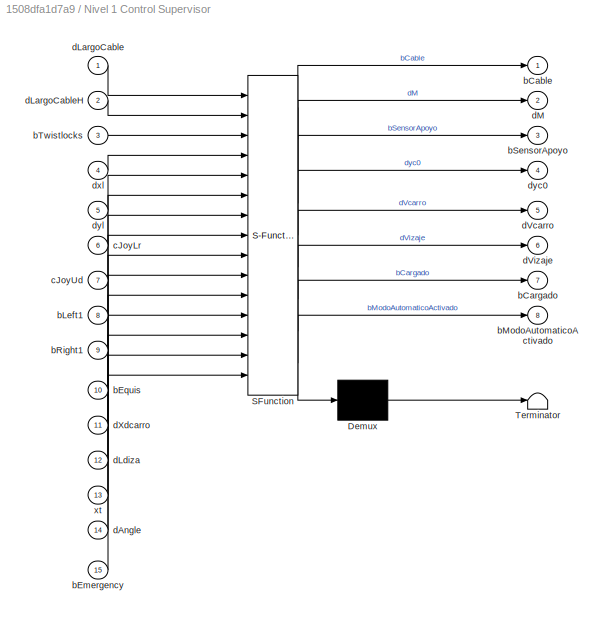
BLOCK [SubSystem] Nivel 1 Control Supervisor
  ErrorFcn = Stateflow.Translate.translate
  PermitHierarchicalResolution = ExplicitOnly
  Ports = [15, 8]
  RequestExecContextInheritance = off
  SFBlockType = Chart
  TreatAsAtomicUnit = on
BLOCK [Demux] Nivel 1 Control Supervisor/ Demux 
  Outputs = 1
  Ports = [1, 1]
BLOCK [S-Function] Nivel 1 Control Supervisor/ SFunction 
  EnableBusSupport = on
  FunctionName = sf_sfun
  Parameters = M_l0,M_lmin,M_ln,amax_c,bCargaDescarga,bControlAutomatico,bPosObjetivoIncremental,dIncremento,dXiniCarga,dXiniCarga2,dXiniDescarga,dXiniDescarga2,dYFinish,dYFinish2,dYStart,dYStart2,sXMax,sXMin,sYMax,sYMin,vmax_c,xdisc
  PortCounts = [15 9]
  Ports = [15, 9]
  SFcnIsStateOwnerBlock = off
  SFunctionDeploymentMode = off
  Tag = Stateflow S-Function crane_model 3
BLOCK [Terminator] Nivel 1 Control Supervisor/ Terminator 
BLOCK [Outport] Nivel 1 Control Supervisor/bCable
  IconDisplay = Port number
BLOCK [Outport] Nivel 1 Control Supervisor/bCargado
  IconDisplay = Port number
  Port = 7
BLOCK [Inport] Nivel 1 Control Supervisor/bEmergency
  IconDisplay = Port number
  Port = 15
BLOCK [Inport] Nivel 1 Control Supervisor/bEquis
  IconDisplay = Port number
  Port = 10
BLOCK [Inport] Nivel 1 Control Supervisor/bLeft1
  IconDisplay = Port number
  Port = 8
BLOCK [Outport] Nivel 1 Control Supervisor/bModoAutomaticoActivado
  IconDisplay = Port number
  Port = 8
BLOCK [Inport] Nivel 1 Control Supervisor/bRight1
  IconDisplay = Port number
  Port = 9
BLOCK [Outport] Nivel 1 Control Supervisor/bSensorApoyo
  IconDisplay = Port number
  Port = 3
BLOCK [Inport] Nivel 1 Control Supervisor/bTwistlocks
  IconDisplay = Port number
  Port = 3
BLOCK [Inport] Nivel 1 Control Supervisor/cJoyLr
  IconDisplay = Port number
  Port = 6
BLOCK [Inport] Nivel 1 Control Supervisor/cJoyUd
  IconDisplay = Port number
  Port = 7
BLOCK [Inport] Nivel 1 Control Supervisor/dAngle
  IconDisplay = Port number
  Port = 14
BLOCK [Inport] Nivel 1 Control Supervisor/dLargoCable
  IconDisplay = Port number
BLOCK [Inport] Nivel 1 Control Supervisor/dLargoCableH
  IconDisplay = Port number
  Port = 2
BLOCK [Inport] Nivel 1 Control Supervisor/dLdiza
  IconDisplay = Port number
  Port = 12
BLOCK [Outport] Nivel 1 Control Supervisor/dM
  IconDisplay = Port number
  Port = 2
BLOCK [Outport] Nivel 1 Control Supervisor/dVcarro
  IconDisplay = Port number
  Port = 5
BLOCK [Outport] Nivel 1 Control Supervisor/dVizaje
  IconDisplay = Port number
  Port = 6
BLOCK [Inport] Nivel 1 Control Supervisor/dXdcarro
  IconDisplay = Port number
  Port = 11
BLOCK [Inport] Nivel 1 Control Supervisor/dxl
  IconDisplay = Port number
  Port = 4
BLOCK [Outport] Nivel 1 Control Supervisor/dyc0
  IconDisplay = Port number
  Port = 4
BLOCK [Inport] Nivel 1 Control Supervisor/dyl
  IconDisplay = Port number
  Port = 5
BLOCK [Inport] Nivel 1 Control Supervisor/xt
  IconDisplay = Port number
  Port = 13
BLOCK [Scope] Scope
  Floating = off
  NumInputPorts = 1
  Ports = [1]
  ScopeSpecificationString = Simulink.scopes.TimeScopeBlockCfg('CurrentConfiguration', extmgr.ConfigurationSet(extmgr.Configuration('Core','General UI',true),extmgr.Configuration('Core','Source UI',true),extmgr.Configuration('Sources','WiredSimulink',true,'DataLoggingVariableName','ScopeData1'),extmgr.Configuration('Visuals','Time Domain',true,'SerializedDisplays',{struct('MinYLimReal','-15232.18105','MaxYLimReal','152520.376...<+1578ch>
BLOCK [Scope] Scope1
  Floating = off
  NumInputPorts = 1
  Ports = [1]
  ScopeSpecificationString = Simulink.scopes.TimeScopeBlockCfg('CurrentConfiguration', extmgr.ConfigurationSet(extmgr.Configuration('Core','General UI',true,'FigureColor',[1 1 1]),extmgr.Configuration('Core','Source UI',true),extmgr.Configuration('Sources','WiredSimulink',true,'DataLoggingVariableName','ScopeData11'),extmgr.Configuration('Visuals','Time Domain',true,'SerializedDisplays',{struct('MinYLimReal','-2.17597','MaxYL...<+2310ch>
BLOCK [Scope] Scope10
  Floating = off
  NumInputPorts = 1
  Ports = [1]
  ScopeSpecificationString = Simulink.scopes.TimeScopeBlockCfg('CurrentConfiguration', extmgr.ConfigurationSet(extmgr.Configuration('Core','General UI',true,'FigureColor',[1 1 1]),extmgr.Configuration('Core','Source UI',true),extmgr.Configuration('Sources','WiredSimulink',true,'DataLoggingVariableName','ScopeData6'),extmgr.Configuration('Visuals','Time Domain',true,'SerializedDisplays',{struct('MinYLimReal','-24.66669','MaxYL...<+2182ch>
BLOCK [Scope] Scope11
  Floating = off
  NumInputPorts = 1
  Ports = [1]
  ScopeSpecificationString = Simulink.scopes.TimeScopeBlockCfg('CurrentConfiguration', extmgr.ConfigurationSet(extmgr.Configuration('Core','General UI',true,'FigureColor',[1 1 1]),extmgr.Configuration('Core','Source UI',true),extmgr.Configuration('Sources','WiredSimulink',true,'DataLoggingVariableName','ScopeData3'),extmgr.Configuration('Visuals','Time Domain',true,'SerializedDisplays',{struct('MinYLimReal','-18.39203','MaxYL...<+2311ch>
BLOCK [Scope] Scope12
  Floating = off
  NumInputPorts = 1
  Ports = [1]
  ScopeSpecificationString = Simulink.scopes.TimeScopeBlockCfg('CurrentConfiguration', extmgr.ConfigurationSet(extmgr.Configuration('Core','General UI',true,'FigureColor',[1 1 1]),extmgr.Configuration('Core','Source UI',true),extmgr.Configuration('Sources','WiredSimulink',true,'DataLoggingVariableName','ScopeData13'),extmgr.Configuration('Visuals','Time Domain',true,'SerializedDisplays',{struct('MinYLimReal','13.48335','MaxYL...<+2312ch>
BLOCK [Scope] Scope13
  Floating = off
  NumInputPorts = 1
  Ports = [1]
  ScopeSpecificationString = Simulink.scopes.TimeScopeBlockCfg('CurrentConfiguration', extmgr.ConfigurationSet(extmgr.Configuration('Core','General UI',true,'FigureColor',[1 1 1]),extmgr.Configuration('Core','Source UI',true),extmgr.Configuration('Sources','WiredSimulink',true,'DataLoggingVariableName','ScopeData15'),extmgr.Configuration('Visuals','Time Domain',true,'SerializedDisplays',{struct('MinYLimReal','-2673.83665','Ma...<+2363ch>
BLOCK [Scope] Scope14
  Floating = off
  NumInputPorts = 3
  Ports = [3]
  ScopeSpecificationString = Simulink.scopes.TimeScopeBlockCfg('CurrentConfiguration', extmgr.ConfigurationSet(extmgr.Configuration('Core','General UI',true,'FigureColor',[1 1 1]),extmgr.Configuration('Core','Source UI',true),extmgr.Configuration('Sources','WiredSimulink',true,'DataLoggingVariableName','ScopeData1'),extmgr.Configuration('Visuals','Time Domain',true,'SerializedDisplays',{struct('MinYLimReal','-33.87626','MaxYL...<+1667ch>
BLOCK [Scope] Scope15
  Floating = off
  NumInputPorts = 1
  Ports = [1]
  ScopeSpecificationString = Simulink.scopes.TimeScopeBlockCfg('CurrentConfiguration', extmgr.ConfigurationSet(extmgr.Configuration('Core','General UI',true,'FigureColor',[1 1 1]),extmgr.Configuration('Core','Source UI',true),extmgr.Configuration('Sources','WiredSimulink',true,'DataLoggingVariableName','ScopeData10'),extmgr.Configuration('Visuals','Time Domain',true,'SerializedDisplays',{struct('MinYLimReal','-6.90153','MaxYL...<+2309ch>
BLOCK [Scope] Scope16
  Floating = off
  NumInputPorts = 2
  Ports = [2]
  ScopeSpecificationString = Simulink.scopes.TimeScopeBlockCfg('CurrentConfiguration', extmgr.ConfigurationSet(extmgr.Configuration('Core','General UI',true,'FigureColor',[1 1 1]),extmgr.Configuration('Core','Source UI',true),extmgr.Configuration('Sources','WiredSimulink',true,'DataLoggingVariableName','ScopeData2'),extmgr.Configuration('Visuals','Time Domain',true,'SerializedDisplays',{struct('MinYLimReal','-3.12188','MaxYLi...<+2316ch>
BLOCK [Scope] Scope17
  Floating = off
  NumInputPorts = 1
  Ports = [1]
  ScopeSpecificationString = Simulink.scopes.TimeScopeBlockCfg('CurrentConfiguration', extmgr.ConfigurationSet(extmgr.Configuration('Core','General UI',true,'FigureColor',[1 1 1]),extmgr.Configuration('Core','Source UI',true),extmgr.Configuration('Sources','WiredSimulink',true,'DataLoggingVariableName','ScopeData5'),extmgr.Configuration('Visuals','Time Domain',true,'SerializedDisplays',{struct('MinYLimReal','-5.00799','MaxYLi...<+2307ch>
BLOCK [Scope] Scope18
  Floating = off
  NumInputPorts = 1
  Ports = [1]
  ScopeSpecificationString = Simulink.scopes.TimeScopeBlockCfg('CurrentConfiguration', extmgr.ConfigurationSet(extmgr.Configuration('Core','General UI',true,'FigureColor',[1 1 1]),extmgr.Configuration('Core','Source UI',true),extmgr.Configuration('Sources','WiredSimulink',true,'DataLoggingVariableName','ScopeData12'),extmgr.Configuration('Visuals','Time Domain',true,'SerializedDisplays',{struct('MinYLimReal','-1.2398','MaxYLi...<+2308ch>
BLOCK [Scope] Scope19
  Floating = off
  NumInputPorts = 1
  Ports = [1]
  ScopeSpecificationString = Simulink.scopes.TimeScopeBlockCfg('CurrentConfiguration', extmgr.ConfigurationSet(extmgr.Configuration('Core','General UI',true,'FigureColor',[1 1 1]),extmgr.Configuration('Core','Source UI',true),extmgr.Configuration('Sources','WiredSimulink',true,'DataLoggingVariableName','ScopeData14'),extmgr.Configuration('Visuals','Time Domain',true,'SerializedDisplays',{struct('MinYLimReal','-24.66669','MaxY...<+2313ch>
BLOCK [Scope] Scope2
  Floating = off
  NumInputPorts = 1
  Ports = [1]
  ScopeSpecificationString = Simulink.scopes.TimeScopeBlockCfg('CurrentConfiguration', extmgr.ConfigurationSet(extmgr.Configuration('Core','General UI',true,'FigureColor',[1 1 1]),extmgr.Configuration('Core','Source UI',true),extmgr.Configuration('Sources','WiredSimulink',true,'DataLoggingVariableName','ScopeData4'),extmgr.Configuration('Visuals','Time Domain',true,'SerializedDisplays',{struct('MinYLimReal','-28813.48495','Ma...<+2364ch>
BLOCK [Scope] Scope20
  Floating = off
  NumInputPorts = 2
  Ports = [2]
  ScopeSpecificationString = Simulink.scopes.TimeScopeBlockCfg('CurrentConfiguration', extmgr.ConfigurationSet(extmgr.Configuration('Core','General UI',true,'FigureColor',[1 1 1]),extmgr.Configuration('Core','Source UI',true),extmgr.Configuration('Sources','WiredSimulink',true,'DataLoggingVariableName','ScopeData3'),extmgr.Configuration('Visuals','Time Domain',true,'SerializedDisplays',{struct('MinYLimReal','-4.18341','MaxYLi...<+2316ch>
BLOCK [Scope] Scope21
  Floating = off
  NumInputPorts = 3
  Ports = [3]
  ScopeSpecificationString = Simulink.scopes.TimeScopeBlockCfg('CurrentConfiguration', extmgr.ConfigurationSet(extmgr.Configuration('Core','General UI',true,'FigureColor',[1 1 1]),extmgr.Configuration('Core','Source UI',true),extmgr.Configuration('Sources','WiredSimulink',true,'DataLoggingVariableName','ScopeData4'),extmgr.Configuration('Visuals','Time Domain',true,'SerializedDisplays',{struct('MinYLimReal','-26.53487','MaxYL...<+2324ch>
BLOCK [Scope] Scope3
  Floating = off
  NumInputPorts = 1
  Ports = [1]
  ScopeSpecificationString = Simulink.scopes.TimeScopeBlockCfg('CurrentConfiguration', extmgr.ConfigurationSet(extmgr.Configuration('Core','General UI',true,'FigureColor',[1 1 1]),extmgr.Configuration('Core','Source UI',true),extmgr.Configuration('Sources','WiredSimulink',true,'DataLoggingVariableName','ScopeData8'),extmgr.Configuration('Visuals','Time Domain',true,'SerializedDisplays',{struct('MinYLimReal','-24.66669','MaxYL...<+2182ch>
BLOCK [Scope] Scope4
  Floating = off
  NumInputPorts = 2
  Ports = [2]
  ScopeSpecificationString = Simulink.scopes.TimeScopeBlockCfg('CurrentConfiguration', extmgr.ConfigurationSet(extmgr.Configuration('Core','General UI',true,'FigureColor',[1 1 1]),extmgr.Configuration('Core','Source UI',true),extmgr.Configuration('Sources','WiredSimulink',true,'DataLoggingVariableName','ScopeData2'),extmgr.Configuration('Visuals','Time Domain',true,'SerializedDisplays',{struct('MinYLimReal','-8.1058','MaxYLim...<+1721ch>
BLOCK [Scope] Scope5
  Floating = off
  NumInputPorts = 2
  Ports = [2]
  ScopeSpecificationString = Simulink.scopes.TimeScopeBlockCfg('CurrentConfiguration', extmgr.ConfigurationSet(extmgr.Configuration('Core','General UI',true,'FigureColor',[1 1 1]),extmgr.Configuration('Core','Source UI',true),extmgr.Configuration('Sources','WiredSimulink',true,'DataLoggingVariableName','ScopeData3'),extmgr.Configuration('Visuals','Time Domain',true,'SerializedDisplays',{struct('MinYLimReal','-3.68301','MaxYLi...<+1660ch>
BLOCK [Scope] Scope6
  Floating = off
  NumInputPorts = 1
  Ports = [1]
  ScopeSpecificationString = Simulink.scopes.TimeScopeBlockCfg('CurrentConfiguration', extmgr.ConfigurationSet(extmgr.Configuration('Core','General UI',true,'FigureColor',[1 1 1]),extmgr.Configuration('Core','Source UI',true),extmgr.Configuration('Sources','WiredSimulink',true,'DataLoggingVariableName','ScopeData1'),extmgr.Configuration('Visuals','Time Domain',true,'SerializedDisplays',{struct('MinYLimReal','-33.87626','MaxYL...<+2311ch>
BLOCK [Scope] Scope7
  Floating = off
  NumInputPorts = 1
  Ports = [1]
  ScopeSpecificationString = Simulink.scopes.TimeScopeBlockCfg('CurrentConfiguration', extmgr.ConfigurationSet(extmgr.Configuration('Core','General UI',true,'FigureColor',[1 1 1]),extmgr.Configuration('Core','Source UI',true),extmgr.Configuration('Sources','WiredSimulink',true,'DataLoggingVariableName','ScopeData2'),extmgr.Configuration('Visuals','Time Domain',true,'SerializedDisplays',{struct('MinYLimReal','-33.70705','MaxYL...<+2311ch>
BLOCK [Scope] Scope8
  Floating = off
  NumInputPorts = 1
  Ports = [1]
  ScopeSpecificationString = Simulink.scopes.TimeScopeBlockCfg('CurrentConfiguration', extmgr.ConfigurationSet(extmgr.Configuration('Core','General UI',true,'FigureColor',[1 1 1]),extmgr.Configuration('Core','Source UI',true),extmgr.Configuration('Sources','WiredSimulink',true,'DataLoggingVariableName','ScopeData9'),extmgr.Configuration('Visuals','Time Domain',true,'SerializedDisplays',{struct('MinYLimReal','-3.78135','MaxYLi...<+2307ch>
BLOCK [Scope] Scope9
  Floating = off
  NumInputPorts = 1
  Ports = [1]
  ScopeSpecificationString = Simulink.scopes.TimeScopeBlockCfg('CurrentConfiguration', extmgr.ConfigurationSet(extmgr.Configuration('Core','General UI',true,'FigureColor',[1 1 1]),extmgr.Configuration('Core','Source UI',true),extmgr.Configuration('Sources','WiredSimulink',true,'DataLoggingVariableName','ScopeData7'),extmgr.Configuration('Visuals','Time Domain',true,'SerializedDisplays',{struct('MinYLimReal','-2.21814','MaxYLi...<+2307ch>
BLOCK [Switch] Switch
  Criteria = u2 ~= 0
  InputSameDT = off
  SaturateOnIntegerOverflow = off
BLOCK [Switch] Switch1
  Criteria = u2 ~= 0
  InputSameDT = off
  SaturateOnIntegerOverflow = off
BLOCK [Terminator] Terminator1
BLOCK [Terminator] Terminator2
BLOCK [Terminator] Terminator4
BLOCK [Terminator] Terminator5
BLOCK [Terminator] Terminator6
BLOCK [Terminator] Terminator8
ANNOTATION (root): Aceleraciones
ANNOTATION (root): Cable
ANNOTATION (root): Fuerza
ANNOTATION (root): Posición
ANNOTATION (root): Velocidades
ANNOTATION (root): Ángulo
LINE Chart1:1 -> Nivel 1 Control Supervisor:3
LINE Constant1:1 -> Manual Switch:1
LINE Constant2:1 -> Manual Switch1:2
LINE Constant3:1 -> Manual Switch1:1
LINE Constant:1 -> Manual Switch:2
LINE Controlador de Movimientos discreto/Constant4:1 -> Controlador de Movimientos discreto/PD_balanceo:1
LINE Controlador de Movimientos discreto/Constant:1 -> Controlador de Movimientos discreto/Manual Switch:2
LINE Controlador de Movimientos discreto/Derivative:1 -> Controlador de Movimientos discreto/PD_balanceo:2
LINE Controlador de Movimientos discreto/From1:1 -> Controlador de Movimientos discreto/Gain7:1
LINE Controlador de Movimientos discreto/From3:1 -> Controlador de Movimientos discreto/Derivative:1
LINE Controlador de Movimientos discreto/From:1 -> Controlador de Movimientos discreto/Gain3:1
LINE Controlador de Movimientos discreto/Gain10:1 -> Controlador de Movimientos discreto/PID_motor_carro:2
LINE Controlador de Movimientos discreto/Gain2:1 -> Controlador de Movimientos discreto/Integrator1:1
NET Controlador de Movimientos discreto/Gain3:1 -> Controlador de Movimientos discreto/Gain8:1, Controlador de Movimientos discreto/PID_motor_carro:1
LINE Controlador de Movimientos discreto/Gain4:1 -> Controlador de Movimientos discreto/Integrator5:1
LINE Controlador de Movimientos discreto/Gain5:1 -> Controlador de Movimientos discreto/PID_motor_izaje:1
NET Controlador de Movimientos discreto/Gain7:1 -> Controlador de Movimientos discreto/Gain9:1, Controlador de Movimientos discreto/PID_motor_izaje:2
LINE Controlador de Movimientos discreto/Gain8:1 -> Controlador de Movimientos discreto/Sum2:1
LINE Controlador de Movimientos discreto/Gain9:1 -> Controlador de Movimientos discreto/Sum5:2
LINE Controlador de Movimientos discreto/Gain:1 -> Controlador de Movimientos discreto/Manual Switch:1
NET Controlador de Movimientos discreto/Integrator1:1 -> Controlador de Movimientos discreto/Gain5:1, Controlador de Movimientos discreto/Scope:1, Controlador de Movimientos discreto/Sum4:2
NET Controlador de Movimientos discreto/Integrator5:1 -> Controlador de Movimientos discreto/Gain10:1, Controlador de Movimientos discreto/Sum3:2
LINE Controlador de Movimientos discreto/Manual Switch:1 -> Controlador de Movimientos discreto/Rate Limiter2:1
LINE Controlador de Movimientos discreto/Modulador de Torque Tm_c:1 -> Controlador de Movimientos discreto/Tm_c:1
LINE Controlador de Movimientos discreto/Modulador de Torque Tm_i:1 -> Controlador de Movimientos discreto/Tm_i:1
LINE Controlador de Movimientos discreto/PD_balanceo/Discrete-Time Integrator:1 -> Controlador de Movimientos discreto/PD_balanceo/Product:1
LINE Controlador de Movimientos discreto/PD_balanceo/From10:1 -> Controlador de Movimientos discreto/PD_balanceo/GainScheduling:1
LINE Controlador de Movimientos discreto/PD_balanceo/From19:1 -> Controlador de Movimientos discreto/PD_balanceo/GainScheduling:2
LINE Controlador de Movimientos discreto/PD_balanceo/From2:1 -> Controlador de Movimientos discreto/PD_balanceo/GainScheduling:3
LINE Controlador de Movimientos discreto/PD_balanceo/GainScheduling:1 -> Controlador de Movimientos discreto/PD_balanceo/Product:2
LINE Controlador de Movimientos discreto/PD_balanceo/GainScheduling:2 -> Controlador de Movimientos discreto/PD_balanceo/Product1:1
LINE Controlador de Movimientos discreto/PD_balanceo/Product1:1 -> Controlador de Movimientos discreto/PD_balanceo/Sum7:2
LINE Controlador de Movimientos discreto/PD_balanceo/Product:1 -> Controlador de Movimientos discreto/PD_balanceo/Sum7:1
LINE Controlador de Movimientos discreto/PD_balanceo/Sum6:1 -> Controlador de Movimientos discreto/PD_balanceo/Zero-Order Hold:1
LINE Controlador de Movimientos discreto/PD_balanceo/Sum7:1 -> Controlador de Movimientos discreto/PD_balanceo/Zero-Order Hold1:1
LINE Controlador de Movimientos discreto/PD_balanceo/Zero-Order Hold1:1 -> Controlador de Movimientos discreto/PD_balanceo/Tm_c*':1
NET Controlador de Movimientos discreto/PD_balanceo/Zero-Order Hold:1 -> Controlador de Movimientos discreto/PD_balanceo/Discrete-Time Integrator:1, Controlador de Movimientos discreto/PD_balanceo/Product1:2
LINE Controlador de Movimientos discreto/PD_balanceo/r_a:1 -> Controlador de Movimientos discreto/PD_balanceo/Sum6:1
LINE Controlador de Movimientos discreto/PD_balanceo/v_theta:1 -> Controlador de Movimientos discreto/PD_balanceo/Sum6:2
LINE Controlador de Movimientos discreto/PD_balanceo:1 -> Controlador de Movimientos discreto/Gain:1
NET Controlador de Movimientos discreto/PID_motor_carro/Discrete-Time Integrator1:1 -> Controlador de Movimientos discreto/PID_motor_carro/Discrete-Time Integrator:1, Controlador de Movimientos discreto/PID_motor_carro/Gain1:1
LINE Controlador de Movimientos discreto/PID_motor_carro/Discrete-Time Integrator:1 -> Controlador de Movimientos discreto/PID_motor_carro/Gain2:1
LINE Controlador de Movimientos discreto/PID_motor_carro/Gain1:1 -> Controlador de Movimientos discreto/PID_motor_carro/Sum:2
LINE Controlador de Movimientos discreto/PID_motor_carro/Gain2:1 -> Controlador de Movimientos discreto/PID_motor_carro/Sum:1
LINE Controlador de Movimientos discreto/PID_motor_carro/Gain:1 -> Controlador de Movimientos discreto/PID_motor_carro/Sum:3
LINE Controlador de Movimientos discreto/PID_motor_carro/Sum1:1 -> Controlador de Movimientos discreto/PID_motor_carro/Zero-Order Hold:1
LINE Controlador de Movimientos discreto/PID_motor_carro/Sum:1 -> Controlador de Movimientos discreto/PID_motor_carro/Zero-Order Hold1:1
LINE Controlador de Movimientos discreto/PID_motor_carro/Zero-Order Hold1:1 -> Controlador de Movimientos discreto/PID_motor_carro/Tm_c*':1
NET Controlador de Movimientos discreto/PID_motor_carro/Zero-Order Hold:1 -> Controlador de Movimientos discreto/PID_motor_carro/Discrete-Time Integrator1:1, Controlador de Movimientos discreto/PID_motor_carro/Gain:1
LINE Controlador de Movimientos discreto/PID_motor_carro/r_c:1 -> Controlador de Movimientos discreto/PID_motor_carro/Sum1:2
LINE Controlador de Movimientos discreto/PID_motor_carro/wm_c:1 -> Controlador de Movimientos discreto/PID_motor_carro/Sum1:1
LINE Controlador de Movimientos discreto/PID_motor_carro:1 -> Controlador de Movimientos discreto/Sum2:2
NET Controlador de Movimientos discreto/PID_motor_izaje/Discrete-Time Integrator1:1 -> Controlador de Movimientos discreto/PID_motor_izaje/Discrete-Time Integrator:1, Controlador de Movimientos discreto/PID_motor_izaje/Gain5:1
LINE Controlador de Movimientos discreto/PID_motor_izaje/Discrete-Time Integrator:1 -> Controlador de Movimientos discreto/PID_motor_izaje/Gain6:1
LINE Controlador de Movimientos discreto/PID_motor_izaje/Gain4:1 -> Controlador de Movimientos discreto/PID_motor_izaje/Sum3:1
LINE Controlador de Movimientos discreto/PID_motor_izaje/Gain5:1 -> Controlador de Movimientos discreto/PID_motor_izaje/Sum3:2
LINE Controlador de Movimientos discreto/PID_motor_izaje/Gain6:1 -> Controlador de Movimientos discreto/PID_motor_izaje/Sum3:3
LINE Controlador de Movimientos discreto/PID_motor_izaje/Sum3:1 -> Controlador de Movimientos discreto/PID_motor_izaje/Zero-Order Hold1:1
LINE Controlador de Movimientos discreto/PID_motor_izaje/Sum4:1 -> Controlador de Movimientos discreto/PID_motor_izaje/Zero-Order Hold:1
LINE Controlador de Movimientos discreto/PID_motor_izaje/Zero-Order Hold1:1 -> Controlador de Movimientos discreto/PID_motor_izaje/Tm_i*':1
NET Controlador de Movimientos discreto/PID_motor_izaje/Zero-Order Hold:1 -> Controlador de Movimientos discreto/PID_motor_izaje/Discrete-Time Integrator1:1, Controlador de Movimientos discreto/PID_motor_izaje/Gain4:1
LINE Controlador de Movimientos discreto/PID_motor_izaje/r_i:1 -> Controlador de Movimientos discreto/PID_motor_izaje/Sum4:1
LINE Controlador de Movimientos discreto/PID_motor_izaje/wm_i:1 -> Controlador de Movimientos discreto/PID_motor_izaje/Sum4:2
LINE Controlador de Movimientos discreto/PID_motor_izaje:1 -> Controlador de Movimientos discreto/Sum5:1
LINE Controlador de Movimientos discreto/Rate Limiter1:1 -> Controlador de Movimientos discreto/Sum4:1
LINE Controlador de Movimientos discreto/Rate Limiter2:1 -> Controlador de Movimientos discreto/Sum1:2
LINE Controlador de Movimientos discreto/Rate Limiter:1 -> Controlador de Movimientos discreto/Sum3:1
LINE Controlador de Movimientos discreto/Saturation1:1 -> Controlador de Movimientos discreto/Rate Limiter1:1
LINE Controlador de Movimientos discreto/Saturation:1 -> Controlador de Movimientos discreto/Rate Limiter:1
LINE Controlador de Movimientos discreto/Sum1:1 -> Controlador de Movimientos discreto/Saturation:1
LINE Controlador de Movimientos discreto/Sum2:1 -> Controlador de Movimientos discreto/Modulador de Torque Tm_c:1
LINE Controlador de Movimientos discreto/Sum3:1 -> Controlador de Movimientos discreto/Gain4:1
LINE Controlador de Movimientos discreto/Sum4:1 -> Controlador de Movimientos discreto/Gain2:1
LINE Controlador de Movimientos discreto/Sum5:1 -> Controlador de Movimientos discreto/Modulador de Torque Tm_i:1
LINE Controlador de Movimientos discreto/Vc*:1 -> Controlador de Movimientos discreto/Sum1:1
LINE Controlador de Movimientos discreto/Vi*:1 -> Controlador de Movimientos discreto/Saturation1:1
NET Controlador de Movimientos discreto:1 -> Goto5:1, Modelo Fisico Idealizado No Lineal:1
NET Controlador de Movimientos discreto:2 -> Goto6:1, Modelo Fisico Idealizado No Lineal:2
LINE Demux1:1 -> Demux3:1
LINE Demux1:2 -> Terminator5:1
LINE Demux2:1 -> Nivel 1 Control Supervisor:6
LINE Demux2:2 -> Nivel 1 Control Supervisor:7
LINE Demux3:1 -> Chart1:1
LINE Demux3:2 -> Terminator1:1
LINE Demux3:3 -> Terminator4:1
LINE Demux3:4 -> Nivel 1 Control Supervisor:10
LINE Demux3:5 -> Nivel 1 Control Supervisor:8
LINE Demux3:6 -> Nivel 1 Control Supervisor:9
LINE Demux:1 -> Demux2:1
LINE Demux:2 -> Terminator6:1
LINE From10:1 -> Scope12:1
NET From11:1 -> Scope16:1, Scope8:1
LINE From12:1 -> Scope3:1
LINE From13:1 -> Scope10:1
LINE From14:1 -> Scope9:1
NET From15:1 -> Scope18:1, Scope20:2
NET From16:1 -> Scope16:2, Scope1:1
LINE From17:1 -> Scope:1
LINE From18:1 -> Nivel 1 Control Supervisor:14
LINE From19:1 -> Nivel 0 Sistema de Seguridad :5
LINE From1:1 -> Nivel 1 Control Supervisor:2
LINE From20:1 -> Nivel 0 Sistema de Seguridad :2
LINE From21:1 -> Scope14:3
LINE From22:1 -> Nivel 1 Control Supervisor:11
LINE From23:1 -> Nivel 1 Control Supervisor:12
LINE From24:1 -> Nivel 0 Sistema de Seguridad :3
LINE From25:1 -> Nivel 1 Control Supervisor:13
LINE From26:1 -> Nivel 0 Sistema de Seguridad :4
LINE From27:1 -> Scope13:1
LINE From28:1 -> Scope2:1
LINE From29:1 -> Scope14:2
LINE From2:1 -> Scope19:1
LINE From30:1 -> Scope14:1
LINE From31:1 -> Scope4:1
LINE From32:1 -> Gain1:1
LINE From34:1 -> Scope5:1
LINE From35:1 -> Scope5:2
LINE From3:1 -> Gain14:1
NET From4:1 -> Scope17:1, Scope20:1
LINE From5:1 -> Scope7:1
LINE From6:1 -> Nivel 1 Control Supervisor:4
LINE From7:1 -> Nivel 1 Control Supervisor:5
NET From8:1 -> Scope21:1, Scope6:1
NET From9:1 -> Scope11:1, Scope21:3
LINE From:1 -> Nivel 1 Control Supervisor:1
NET Gain14:1 -> Scope15:1, Scope21:2
LINE Gain1:1 -> Scope4:2
LINE Joystick Input:1 -> Demux:1
LINE Joystick Input:2 -> Demux1:1
LINE Joystick Input:3 -> Terminator8:1
LINE Manual Switch1:1 -> Nivel 0 Sistema de Seguridad :6
LINE Manual Switch:1 -> Nivel 0 Sistema de Seguridad :1
LINE Modelo Fisico Idealizado No Lineal/Constant1:1 -> Modelo Fisico Idealizado No Lineal/Traslacion Carro:4
LINE Modelo Fisico Idealizado No Lineal/Constant2:1 -> Modelo Fisico Idealizado No Lineal/Izaje Carga:3
LINE Modelo Fisico Idealizado No Lineal/Constant3:1 -> Modelo Fisico Idealizado No Lineal/Ubicacion de Carga:3
LINE Modelo Fisico Idealizado No Lineal/Constant4:1 -> Modelo Fisico Idealizado No Lineal/Ubicacion de Carga:4
LINE Modelo Fisico Idealizado No Lineal/Constant:1 -> Modelo Fisico Idealizado No Lineal/Goto9:1
LINE Modelo Fisico Idealizado No Lineal/Distancia geometrica real/Add:1 -> Modelo Fisico Idealizado No Lineal/Distancia geometrica real/Sqrt:1
LINE Modelo Fisico Idealizado No Lineal/Distancia geometrica real/Sqrt:1 -> Modelo Fisico Idealizado No Lineal/Distancia geometrica real/l:1
LINE Modelo Fisico Idealizado No Lineal/Distancia geometrica real/Square1:1 -> Modelo Fisico Idealizado No Lineal/Distancia geometrica real/Add:2
LINE Modelo Fisico Idealizado No Lineal/Distancia geometrica real/Square:1 -> Modelo Fisico Idealizado No Lineal/Distancia geometrica real/Add:1
LINE Modelo Fisico Idealizado No Lineal/Distancia geometrica real/Subtract1:1 -> Modelo Fisico Idealizado No Lineal/Distancia geometrica real/Square1:1
LINE Modelo Fisico Idealizado No Lineal/Distancia geometrica real/Subtract:1 -> Modelo Fisico Idealizado No Lineal/Distancia geometrica real/Square:1
LINE Modelo Fisico Idealizado No Lineal/Distancia geometrica real/xl:1 -> Modelo Fisico Idealizado No Lineal/Distancia geometrica real/Subtract:1
LINE Modelo Fisico Idealizado No Lineal/Distancia geometrica real/xt:1 -> Modelo Fisico Idealizado No Lineal/Distancia geometrica real/Subtract:2
LINE Modelo Fisico Idealizado No Lineal/Distancia geometrica real/y0:1 -> Modelo Fisico Idealizado No Lineal/Distancia geometrica real/Subtract1:1
LINE Modelo Fisico Idealizado No Lineal/Distancia geometrica real/yl:1 -> Modelo Fisico Idealizado No Lineal/Distancia geometrica real/Subtract1:2
LINE Modelo Fisico Idealizado No Lineal/Distancia geometrica real:1 -> Modelo Fisico Idealizado No Lineal/Goto8:1
LINE Modelo Fisico Idealizado No Lineal/From10:1 -> Modelo Fisico Idealizado No Lineal/Fuerza Elastica Cable:2
LINE Modelo Fisico Idealizado No Lineal/From11:1 -> Modelo Fisico Idealizado No Lineal/Level-2 MATLAB S-Function:4
LINE Modelo Fisico Idealizado No Lineal/From15:1 -> Modelo Fisico Idealizado No Lineal/Level-2 MATLAB S-Function:1
LINE Modelo Fisico Idealizado No Lineal/From16:1 -> Modelo Fisico Idealizado No Lineal/Inclinacion de Carga:1
LINE Modelo Fisico Idealizado No Lineal/From17:1 -> Modelo Fisico Idealizado No Lineal/Distancia geometrica real:3
LINE Modelo Fisico Idealizado No Lineal/From1:1 -> Modelo Fisico Idealizado No Lineal/Izaje Carga:2
LINE Modelo Fisico Idealizado No Lineal/From20:1 -> Modelo Fisico Idealizado No Lineal/Inclinacion de Carga:2
LINE Modelo Fisico Idealizado No Lineal/From23:1 -> Modelo Fisico Idealizado No Lineal/Level-2 MATLAB S-Function:2
LINE Modelo Fisico Idealizado No Lineal/From24:1 -> Modelo Fisico Idealizado No Lineal/Distancia geometrica real:1
LINE Modelo Fisico Idealizado No Lineal/From26:1 -> Modelo Fisico Idealizado No Lineal/Level-2 MATLAB S-Function:3
LINE Modelo Fisico Idealizado No Lineal/From27:1 -> Modelo Fisico Idealizado No Lineal/Inclinacion de Carga:3
LINE Modelo Fisico Idealizado No Lineal/From28:1 -> Modelo Fisico Idealizado No Lineal/Distancia geometrica real:2
LINE Modelo Fisico Idealizado No Lineal/From2:1 -> Modelo Fisico Idealizado No Lineal/Traslacion Carro:2
LINE Modelo Fisico Idealizado No Lineal/From30:1 -> Modelo Fisico Idealizado No Lineal/Fuerza Elastica Cable:3
LINE Modelo Fisico Idealizado No Lineal/From31:1 -> Modelo Fisico Idealizado No Lineal/Level-2 MATLAB S-Function:5
LINE Modelo Fisico Idealizado No Lineal/From34:1 -> Modelo Fisico Idealizado No Lineal/Inclinacion de Carga:4
LINE Modelo Fisico Idealizado No Lineal/From39:1 -> Modelo Fisico Idealizado No Lineal/Distancia geometrica real:4
LINE Modelo Fisico Idealizado No Lineal/From3:1 -> Modelo Fisico Idealizado No Lineal/Ubicacion de Carga:2
LINE Modelo Fisico Idealizado No Lineal/From4:1 -> Modelo Fisico Idealizado No Lineal/Level-2 MATLAB S-Function:6
LINE Modelo Fisico Idealizado No Lineal/From5:1 -> Modelo Fisico Idealizado No Lineal/Traslacion Carro:3
LINE Modelo Fisico Idealizado No Lineal/From6:1 -> Modelo Fisico Idealizado No Lineal/Ubicacion de Carga:1
LINE Modelo Fisico Idealizado No Lineal/From7:1 -> Modelo Fisico Idealizado No Lineal/Ubicacion de Carga:5
LINE Modelo Fisico Idealizado No Lineal/From8:1 -> Modelo Fisico Idealizado No Lineal/Fuerza Elastica Cable:1
LINE Modelo Fisico Idealizado No Lineal/From9:1 -> Modelo Fisico Idealizado No Lineal/Level-2 MATLAB S-Function:7
LINE Modelo Fisico Idealizado No Lineal/Fuerza Elastica Cable/Bw:1 -> Modelo Fisico Idealizado No Lineal/Fuerza Elastica Cable/Sum1:2
NET Modelo Fisico Idealizado No Lineal/Fuerza Elastica Cable/Derivative3:1 -> Modelo Fisico Idealizado No Lineal/Fuerza Elastica Cable/Goto10:1, Modelo Fisico Idealizado No Lineal/Fuerza Elastica Cable/Sum5:1
LINE Modelo Fisico Idealizado No Lineal/Fuerza Elastica Cable/From:1 -> Modelo Fisico Idealizado No Lineal/Fuerza Elastica Cable/Switch:2
LINE Modelo Fisico Idealizado No Lineal/Fuerza Elastica Cable/Kw1:1 -> Modelo Fisico Idealizado No Lineal/Fuerza Elastica Cable/Switch:3
LINE Modelo Fisico Idealizado No Lineal/Fuerza Elastica Cable/Kw:1 -> Modelo Fisico Idealizado No Lineal/Fuerza Elastica Cable/Switch:1
LINE Modelo Fisico Idealizado No Lineal/Fuerza Elastica Cable/Sum1:1 -> Modelo Fisico Idealizado No Lineal/Fuerza Elastica Cable/Fw:1
NET Modelo Fisico Idealizado No Lineal/Fuerza Elastica Cable/Sum2:1 -> Modelo Fisico Idealizado No Lineal/Fuerza Elastica Cable/Kw1:1, Modelo Fisico Idealizado No Lineal/Fuerza Elastica Cable/Kw:1
LINE Modelo Fisico Idealizado No Lineal/Fuerza Elastica Cable/Sum5:1 -> Modelo Fisico Idealizado No Lineal/Fuerza Elastica Cable/Bw:1
LINE Modelo Fisico Idealizado No Lineal/Fuerza Elastica Cable/Switch:1 -> Modelo Fisico Idealizado No Lineal/Fuerza Elastica Cable/Sum1:1
NET Modelo Fisico Idealizado No Lineal/Fuerza Elastica Cable/l:1 -> Modelo Fisico Idealizado No Lineal/Fuerza Elastica Cable/Derivative3:1, Modelo Fisico Idealizado No Lineal/Fuerza Elastica Cable/Sum2:1
LINE Modelo Fisico Idealizado No Lineal/Fuerza Elastica Cable/lh':1 -> Modelo Fisico Idealizado No Lineal/Fuerza Elastica Cable/Sum5:2
LINE Modelo Fisico Idealizado No Lineal/Fuerza Elastica Cable/lh:1 -> Modelo Fisico Idealizado No Lineal/Fuerza Elastica Cable/Sum2:2
LINE Modelo Fisico Idealizado No Lineal/Fuerza Elastica Cable:1 -> Modelo Fisico Idealizado No Lineal/Goto:1
LINE Modelo Fisico Idealizado No Lineal/Inclinacion de Carga/Atan2:1 -> Modelo Fisico Idealizado No Lineal/Inclinacion de Carga/theta:1
LINE Modelo Fisico Idealizado No Lineal/Inclinacion de Carga/Subtract1:1 -> Modelo Fisico Idealizado No Lineal/Inclinacion de Carga/Atan2:2
LINE Modelo Fisico Idealizado No Lineal/Inclinacion de Carga/Subtract:1 -> Modelo Fisico Idealizado No Lineal/Inclinacion de Carga/Atan2:1
LINE Modelo Fisico Idealizado No Lineal/Inclinacion de Carga/xl:1 -> Modelo Fisico Idealizado No Lineal/Inclinacion de Carga/Subtract:1
LINE Modelo Fisico Idealizado No Lineal/Inclinacion de Carga/xt:1 -> Modelo Fisico Idealizado No Lineal/Inclinacion de Carga/Subtract:2
LINE Modelo Fisico Idealizado No Lineal/Inclinacion de Carga/y0:1 -> Modelo Fisico Idealizado No Lineal/Inclinacion de Carga/Subtract1:1
LINE Modelo Fisico Idealizado No Lineal/Inclinacion de Carga/yl:1 -> Modelo Fisico Idealizado No Lineal/Inclinacion de Carga/Subtract1:2
LINE Modelo Fisico Idealizado No Lineal/Inclinacion de Carga:1 -> Modelo Fisico Idealizado No Lineal/Goto1:1
LINE Modelo Fisico Idealizado No Lineal/Izaje Carga/1//Jeq1:1 -> Modelo Fisico Idealizado No Lineal/Izaje Carga/Motor Izaje:3
LINE Modelo Fisico Idealizado No Lineal/Izaje Carga/Fw:1 -> Modelo Fisico Idealizado No Lineal/Izaje Carga/Rw2:1
NET Modelo Fisico Idealizado No Lineal/Izaje Carga/Motor Izaje/1//Jeq:1 -> Modelo Fisico Idealizado No Lineal/Izaje Carga/Motor Izaje/Integrator:1, Modelo Fisico Idealizado No Lineal/Izaje Carga/Motor Izaje/wm_i':1
LINE Modelo Fisico Idealizado No Lineal/Izaje Carga/Motor Izaje/Integrator1:1 -> Modelo Fisico Idealizado No Lineal/Izaje Carga/Motor Izaje/thetam_i:1
NET Modelo Fisico Idealizado No Lineal/Izaje Carga/Motor Izaje/Integrator:1 -> Modelo Fisico Idealizado No Lineal/Izaje Carga/Motor Izaje/Integrator1:1, Modelo Fisico Idealizado No Lineal/Izaje Carga/Motor Izaje/beq:1, Modelo Fisico Idealizado No Lineal/Izaje Carga/Motor Izaje/wm_i:1
LINE Modelo Fisico Idealizado No Lineal/Izaje Carga/Motor Izaje/Sum:1 -> Modelo Fisico Idealizado No Lineal/Izaje Carga/Motor Izaje/1//Jeq:1
LINE Modelo Fisico Idealizado No Lineal/Izaje Carga/Motor Izaje/Teq_i:1 -> Modelo Fisico Idealizado No Lineal/Izaje Carga/Motor Izaje/Sum:1
LINE Modelo Fisico Idealizado No Lineal/Izaje Carga/Motor Izaje/Tm_i:1 -> Modelo Fisico Idealizado No Lineal/Izaje Carga/Motor Izaje/Sum:2
LINE Modelo Fisico Idealizado No Lineal/Izaje Carga/Motor Izaje/beq:1 -> Modelo Fisico Idealizado No Lineal/Izaje Carga/Motor Izaje/Sum:3
LINE Modelo Fisico Idealizado No Lineal/Izaje Carga/Motor Izaje/theta_i_0:1 -> Modelo Fisico Idealizado No Lineal/Izaje Carga/Motor Izaje/Integrator1:2
LINE Modelo Fisico Idealizado No Lineal/Izaje Carga/Motor Izaje:1 -> Modelo Fisico Idealizado No Lineal/Izaje Carga/Rw:1
LINE Modelo Fisico Idealizado No Lineal/Izaje Carga/Motor Izaje:2 -> Modelo Fisico Idealizado No Lineal/Izaje Carga/Rw1:1
LINE Modelo Fisico Idealizado No Lineal/Izaje Carga/Motor Izaje:3 -> Modelo Fisico Idealizado No Lineal/Izaje Carga/Rw3:1
LINE Modelo Fisico Idealizado No Lineal/Izaje Carga/Rw1:1 -> Modelo Fisico Idealizado No Lineal/Izaje Carga/lh:1
LINE Modelo Fisico Idealizado No Lineal/Izaje Carga/Rw2:1 -> Modelo Fisico Idealizado No Lineal/Izaje Carga/Motor Izaje:2
LINE Modelo Fisico Idealizado No Lineal/Izaje Carga/Rw3:1 -> Modelo Fisico Idealizado No Lineal/Izaje Carga/Goto:1
LINE Modelo Fisico Idealizado No Lineal/Izaje Carga/Rw:1 -> Modelo Fisico Idealizado No Lineal/Izaje Carga/lh':1
LINE Modelo Fisico Idealizado No Lineal/Izaje Carga/Tm_i:1 -> Modelo Fisico Idealizado No Lineal/Izaje Carga/Motor Izaje:1
LINE Modelo Fisico Idealizado No Lineal/Izaje Carga/lh_0:1 -> Modelo Fisico Idealizado No Lineal/Izaje Carga/1//Jeq1:1
LINE Modelo Fisico Idealizado No Lineal/Izaje Carga:1 -> Modelo Fisico Idealizado No Lineal/Goto2:1
LINE Modelo Fisico Idealizado No Lineal/Izaje Carga:2 -> Modelo Fisico Idealizado No Lineal/Goto3:1
LINE Modelo Fisico Idealizado No Lineal/Tm_c:1 -> Modelo Fisico Idealizado No Lineal/Traslacion Carro:1
LINE Modelo Fisico Idealizado No Lineal/Tm_i:1 -> Modelo Fisico Idealizado No Lineal/Izaje Carga:1
LINE Modelo Fisico Idealizado No Lineal/Traslacion Carro/Fw:1 -> Modelo Fisico Idealizado No Lineal/Traslacion Carro/Rw2:1
NET Modelo Fisico Idealizado No Lineal/Traslacion Carro/Motor Carro/1//Jeq:1 -> Modelo Fisico Idealizado No Lineal/Traslacion Carro/Motor Carro/Integrator:1, Modelo Fisico Idealizado No Lineal/Traslacion Carro/Motor Carro/wm_c':1
LINE Modelo Fisico Idealizado No Lineal/Traslacion Carro/Motor Carro/Integrator1:1 -> Modelo Fisico Idealizado No Lineal/Traslacion Carro/Motor Carro/thetam_c:1
NET Modelo Fisico Idealizado No Lineal/Traslacion Carro/Motor Carro/Integrator:1 -> Modelo Fisico Idealizado No Lineal/Traslacion Carro/Motor Carro/Integrator1:1, Modelo Fisico Idealizado No Lineal/Traslacion Carro/Motor Carro/beq:1, Modelo Fisico Idealizado No Lineal/Traslacion Carro/Motor Carro/wm_c:1
LINE Modelo Fisico Idealizado No Lineal/Traslacion Carro/Motor Carro/Sum:1 -> Modelo Fisico Idealizado No Lineal/Traslacion Carro/Motor Carro/1//Jeq:1
LINE Modelo Fisico Idealizado No Lineal/Traslacion Carro/Motor Carro/Teq_c:1 -> Modelo Fisico Idealizado No Lineal/Traslacion Carro/Motor Carro/Sum:1
LINE Modelo Fisico Idealizado No Lineal/Traslacion Carro/Motor Carro/Tm_c:1 -> Modelo Fisico Idealizado No Lineal/Traslacion Carro/Motor Carro/Sum:2
LINE Modelo Fisico Idealizado No Lineal/Traslacion Carro/Motor Carro/beq:1 -> Modelo Fisico Idealizado No Lineal/Traslacion Carro/Motor Carro/Sum:3
LINE Modelo Fisico Idealizado No Lineal/Traslacion Carro/Motor Carro/theta_c_0:1 -> Modelo Fisico Idealizado No Lineal/Traslacion Carro/Motor Carro/Integrator1:2
LINE Modelo Fisico Idealizado No Lineal/Traslacion Carro/Motor Carro:1 -> Modelo Fisico Idealizado No Lineal/Traslacion Carro/Rw3:1
LINE Modelo Fisico Idealizado No Lineal/Traslacion Carro/Motor Carro:2 -> Modelo Fisico Idealizado No Lineal/Traslacion Carro/Rw1:1
LINE Modelo Fisico Idealizado No Lineal/Traslacion Carro/Motor Carro:3 -> Modelo Fisico Idealizado No Lineal/Traslacion Carro/Rw4:1
LINE Modelo Fisico Idealizado No Lineal/Traslacion Carro/Product:1 -> Modelo Fisico Idealizado No Lineal/Traslacion Carro/Motor Carro:2
LINE Modelo Fisico Idealizado No Lineal/Traslacion Carro/Rw1:1 -> Modelo Fisico Idealizado No Lineal/Traslacion Carro/xt:1
LINE Modelo Fisico Idealizado No Lineal/Traslacion Carro/Rw2:1 -> Modelo Fisico Idealizado No Lineal/Traslacion Carro/Product:1
LINE Modelo Fisico Idealizado No Lineal/Traslacion Carro/Rw3:1 -> Modelo Fisico Idealizado No Lineal/Traslacion Carro/xt':1
LINE Modelo Fisico Idealizado No Lineal/Traslacion Carro/Rw4:1 -> Modelo Fisico Idealizado No Lineal/Traslacion Carro/Goto:1
LINE Modelo Fisico Idealizado No Lineal/Traslacion Carro/Tm_c:1 -> Modelo Fisico Idealizado No Lineal/Traslacion Carro/Motor Carro:1
LINE Modelo Fisico Idealizado No Lineal/Traslacion Carro/Trigonometric Function:1 -> Modelo Fisico Idealizado No Lineal/Traslacion Carro/Product:2
LINE Modelo Fisico Idealizado No Lineal/Traslacion Carro/i_c//Rw:1 -> Modelo Fisico Idealizado No Lineal/Traslacion Carro/Motor Carro:3
LINE Modelo Fisico Idealizado No Lineal/Traslacion Carro/theta:1 -> Modelo Fisico Idealizado No Lineal/Traslacion Carro/Trigonometric Function:1
LINE Modelo Fisico Idealizado No Lineal/Traslacion Carro/xt_0:1 -> Modelo Fisico Idealizado No Lineal/Traslacion Carro/i_c//Rw:1
LINE Modelo Fisico Idealizado No Lineal/Traslacion Carro:1 -> Modelo Fisico Idealizado No Lineal/Goto4:1
LINE Modelo Fisico Idealizado No Lineal/Traslacion Carro:2 -> Modelo Fisico Idealizado No Lineal/Goto5:1
LINE Modelo Fisico Idealizado No Lineal/Ubicacion de Carga/Aceleracion de Carga en X/Constant1:1 -> Modelo Fisico Idealizado No Lineal/Ubicacion de Carga/Aceleracion de Carga en X/Switch:3
LINE Modelo Fisico Idealizado No Lineal/Ubicacion de Carga/Aceleracion de Carga en X/Divide:1 -> Modelo Fisico Idealizado No Lineal/Ubicacion de Carga/Aceleracion de Carga en X/xl'':1
LINE Modelo Fisico Idealizado No Lineal/Ubicacion de Carga/Aceleracion de Carga en X/From2:1 -> Modelo Fisico Idealizado No Lineal/Ubicacion de Carga/Aceleracion de Carga en X/Divide:2
LINE Modelo Fisico Idealizado No Lineal/Ubicacion de Carga/Aceleracion de Carga en X/From3:1 -> Modelo Fisico Idealizado No Lineal/Ubicacion de Carga/Aceleracion de Carga en X/Switch:2
LINE Modelo Fisico Idealizado No Lineal/Ubicacion de Carga/Aceleracion de Carga en X/Fw:1 -> Modelo Fisico Idealizado No Lineal/Ubicacion de Carga/Aceleracion de Carga en X/Product1:1
LINE Modelo Fisico Idealizado No Lineal/Ubicacion de Carga/Aceleracion de Carga en X/Product1:1 -> Modelo Fisico Idealizado No Lineal/Ubicacion de Carga/Aceleracion de Carga en X/Subtract:1
LINE Modelo Fisico Idealizado No Lineal/Ubicacion de Carga/Aceleracion de Carga en X/Subtract:1 -> Modelo Fisico Idealizado No Lineal/Ubicacion de Carga/Aceleracion de Carga en X/Divide:1
LINE Modelo Fisico Idealizado No Lineal/Ubicacion de Carga/Aceleracion de Carga en X/Switch:1 -> Modelo Fisico Idealizado No Lineal/Ubicacion de Carga/Aceleracion de Carga en X/Subtract:2
LINE Modelo Fisico Idealizado No Lineal/Ubicacion de Carga/Aceleracion de Carga en X/Trigonometric Function1:1 -> Modelo Fisico Idealizado No Lineal/Ubicacion de Carga/Aceleracion de Carga en X/Product1:2
LINE Modelo Fisico Idealizado No Lineal/Ubicacion de Carga/Aceleracion de Carga en X/bcx:1 -> Modelo Fisico Idealizado No Lineal/Ubicacion de Carga/Aceleracion de Carga en X/Switch:1
LINE Modelo Fisico Idealizado No Lineal/Ubicacion de Carga/Aceleracion de Carga en X/theta:1 -> Modelo Fisico Idealizado No Lineal/Ubicacion de Carga/Aceleracion de Carga en X/Trigonometric Function1:1
LINE Modelo Fisico Idealizado No Lineal/Ubicacion de Carga/Aceleracion de Carga en X/xl':1 -> Modelo Fisico Idealizado No Lineal/Ubicacion de Carga/Aceleracion de Carga en X/bcx:1
LINE Modelo Fisico Idealizado No Lineal/Ubicacion de Carga/Aceleracion de Carga en X:1 -> Modelo Fisico Idealizado No Lineal/Ubicacion de Carga/Integrator:1
LINE Modelo Fisico Idealizado No Lineal/Ubicacion de Carga/Aceleracion de Carga en Y/Constant1:1 -> Modelo Fisico Idealizado No Lineal/Ubicacion de Carga/Aceleracion de Carga en Y/Sum3:2
LINE Modelo Fisico Idealizado No Lineal/Ubicacion de Carga/Aceleracion de Carga en Y/Constant:1 -> Modelo Fisico Idealizado No Lineal/Ubicacion de Carga/Aceleracion de Carga en Y/Switch:3
LINE Modelo Fisico Idealizado No Lineal/Ubicacion de Carga/Aceleracion de Carga en Y/Divide:1 -> Modelo Fisico Idealizado No Lineal/Ubicacion de Carga/Aceleracion de Carga en Y/Sum3:1
LINE Modelo Fisico Idealizado No Lineal/Ubicacion de Carga/Aceleracion de Carga en Y/From2:1 -> Modelo Fisico Idealizado No Lineal/Ubicacion de Carga/Aceleracion de Carga en Y/Divide:2
LINE Modelo Fisico Idealizado No Lineal/Ubicacion de Carga/Aceleracion de Carga en Y/From3:1 -> Modelo Fisico Idealizado No Lineal/Ubicacion de Carga/Aceleracion de Carga en Y/Switch:2
LINE Modelo Fisico Idealizado No Lineal/Ubicacion de Carga/Aceleracion de Carga en Y/Fw:1 -> Modelo Fisico Idealizado No Lineal/Ubicacion de Carga/Aceleracion de Carga en Y/Product:1
LINE Modelo Fisico Idealizado No Lineal/Ubicacion de Carga/Aceleracion de Carga en Y/Kcy:1 -> Modelo Fisico Idealizado No Lineal/Ubicacion de Carga/Aceleracion de Carga en Y/Subtract1:1
LINE Modelo Fisico Idealizado No Lineal/Ubicacion de Carga/Aceleracion de Carga en Y/Product:1 -> Modelo Fisico Idealizado No Lineal/Ubicacion de Carga/Aceleracion de Carga en Y/Sum1:1
LINE Modelo Fisico Idealizado No Lineal/Ubicacion de Carga/Aceleracion de Carga en Y/Subtract1:1 -> Modelo Fisico Idealizado No Lineal/Ubicacion de Carga/Aceleracion de Carga en Y/Switch:1
NET Modelo Fisico Idealizado No Lineal/Ubicacion de Carga/Aceleracion de Carga en Y/Subtract:1 -> Modelo Fisico Idealizado No Lineal/Ubicacion de Carga/Aceleracion de Carga en Y/Kcy:1, Modelo Fisico Idealizado No Lineal/Ubicacion de Carga/Aceleracion de Carga en Y/Scope:1
LINE Modelo Fisico Idealizado No Lineal/Ubicacion de Carga/Aceleracion de Carga en Y/Sum1:1 -> Modelo Fisico Idealizado No Lineal/Ubicacion de Carga/Aceleracion de Carga en Y/Divide:1
LINE Modelo Fisico Idealizado No Lineal/Ubicacion de Carga/Aceleracion de Carga en Y/Sum3:1 -> Modelo Fisico Idealizado No Lineal/Ubicacion de Carga/Aceleracion de Carga en Y/yl'':1
LINE Modelo Fisico Idealizado No Lineal/Ubicacion de Carga/Aceleracion de Carga en Y/Switch:1 -> Modelo Fisico Idealizado No Lineal/Ubicacion de Carga/Aceleracion de Carga en Y/Sum1:2
LINE Modelo Fisico Idealizado No Lineal/Ubicacion de Carga/Aceleracion de Carga en Y/Trigonometric Function:1 -> Modelo Fisico Idealizado No Lineal/Ubicacion de Carga/Aceleracion de Carga en Y/Product:2
LINE Modelo Fisico Idealizado No Lineal/Ubicacion de Carga/Aceleracion de Carga en Y/bcy:1 -> Modelo Fisico Idealizado No Lineal/Ubicacion de Carga/Aceleracion de Carga en Y/Subtract1:2
LINE Modelo Fisico Idealizado No Lineal/Ubicacion de Carga/Aceleracion de Carga en Y/theta:1 -> Modelo Fisico Idealizado No Lineal/Ubicacion de Carga/Aceleracion de Carga en Y/Trigonometric Function:1
LINE Modelo Fisico Idealizado No Lineal/Ubicacion de Carga/Aceleracion de Carga en Y/yc0:1 -> Modelo Fisico Idealizado No Lineal/Ubicacion de Carga/Aceleracion de Carga en Y/Subtract:1
LINE Modelo Fisico Idealizado No Lineal/Ubicacion de Carga/Aceleracion de Carga en Y/yl':1 -> Modelo Fisico Idealizado No Lineal/Ubicacion de Carga/Aceleracion de Carga en Y/bcy:1
LINE Modelo Fisico Idealizado No Lineal/Ubicacion de Carga/Aceleracion de Carga en Y/yl:1 -> Modelo Fisico Idealizado No Lineal/Ubicacion de Carga/Aceleracion de Carga en Y/Subtract:2
LINE Modelo Fisico Idealizado No Lineal/Ubicacion de Carga/Aceleracion de Carga en Y:1 -> Modelo Fisico Idealizado No Lineal/Ubicacion de Carga/Integrator1:1
NET Modelo Fisico Idealizado No Lineal/Ubicacion de Carga/Fw:1 -> Modelo Fisico Idealizado No Lineal/Ubicacion de Carga/Aceleracion de Carga en X:2, Modelo Fisico Idealizado No Lineal/Ubicacion de Carga/Aceleracion de Carga en Y:2
NET Modelo Fisico Idealizado No Lineal/Ubicacion de Carga/Integrator1:1 -> Modelo Fisico Idealizado No Lineal/Ubicacion de Carga/Aceleracion de Carga en Y:5, Modelo Fisico Idealizado No Lineal/Ubicacion de Carga/Integrator3:1, Modelo Fisico Idealizado No Lineal/Ubicacion de Carga/yl':1
LINE Modelo Fisico Idealizado No Lineal/Ubicacion de Carga/Integrator2:1 -> Modelo Fisico Idealizado No Lineal/Ubicacion de Carga/xl:1
NET Modelo Fisico Idealizado No Lineal/Ubicacion de Carga/Integrator3:1 -> Modelo Fisico Idealizado No Lineal/Ubicacion de Carga/Aceleracion de Carga en Y:3, Modelo Fisico Idealizado No Lineal/Ubicacion de Carga/yl:1
NET Modelo Fisico Idealizado No Lineal/Ubicacion de Carga/Integrator:1 -> Modelo Fisico Idealizado No Lineal/Ubicacion de Carga/Aceleracion de Carga en X:3, Modelo Fisico Idealizado No Lineal/Ubicacion de Carga/Integrator2:1, Modelo Fisico Idealizado No Lineal/Ubicacion de Carga/xl':1
NET Modelo Fisico Idealizado No Lineal/Ubicacion de Carga/theta:1 -> Modelo Fisico Idealizado No Lineal/Ubicacion de Carga/Aceleracion de Carga en X:1, Modelo Fisico Idealizado No Lineal/Ubicacion de Carga/Aceleracion de Carga en Y:1
LINE Modelo Fisico Idealizado No Lineal/Ubicacion de Carga/xl_0:1 -> Modelo Fisico Idealizado No Lineal/Ubicacion de Carga/Integrator2:2
LINE Modelo Fisico Idealizado No Lineal/Ubicacion de Carga/yc0:1 -> Modelo Fisico Idealizado No Lineal/Ubicacion de Carga/Aceleracion de Carga en Y:4
LINE Modelo Fisico Idealizado No Lineal/Ubicacion de Carga/yl_0:1 -> Modelo Fisico Idealizado No Lineal/Ubicacion de Carga/Integrator3:2
LINE Modelo Fisico Idealizado No Lineal/Ubicacion de Carga:1 -> Modelo Fisico Idealizado No Lineal/Goto6:1
LINE Modelo Fisico Idealizado No Lineal/Ubicacion de Carga:2 -> Modelo Fisico Idealizado No Lineal/Goto7:1
LINE Modelo Fisico Idealizado No Lineal/Ubicacion de Carga:3 -> Modelo Fisico Idealizado No Lineal/Goto11:1
LINE Modelo Fisico Idealizado No Lineal/Ubicacion de Carga:4 -> Modelo Fisico Idealizado No Lineal/Goto12:1
NET Nivel 0 Sistema de Seguridad :1 -> Nivel 1 Control Supervisor:15, Switch1:2, Switch:2
LINE Nivel 0 Sistema de Seguridad :2 -> Switch:1
LINE Nivel 0 Sistema de Seguridad :3 -> Switch1:1
LINE Nivel 1 Control Supervisor:1 -> Goto:1
NET Nivel 1 Control Supervisor:2 -> Display:1, Goto1:1
LINE Nivel 1 Control Supervisor:3 -> Goto2:1
LINE Nivel 1 Control Supervisor:4 -> Goto3:1
NET Nivel 1 Control Supervisor:5 -> Goto7:1, Switch:3
NET Nivel 1 Control Supervisor:6 -> Goto8:1, Switch1:3
LINE Nivel 1 Control Supervisor:7 -> Goto4:1
LINE Nivel 1 Control Supervisor:8 -> Terminator2:1
LINE Switch1:1 -> Controlador de Movimientos discreto:2
LINE Switch:1 -> Controlador de Movimientos discreto:1
note: NET lines group one-source signal fan-out (src -> all destinations, sorted); 1:1 wires keep LINE
CHART Chart1 states=2 transitions=3
  STATE_LABEL 'Push\nen:\nbOutput = true;\n'
  STATE_LABEL 'UnPush\nen:\nbOutput = false;\n'
CHART Nivel 0
Sistema de Seguridad
 states=12 transitions=13
  STATE_LABEL 'Ejecutando'
  STATE_LABEL 'LimitesDeVelocidad'
  STATE_LABEL 'Velocidad_Stop\nen:\nbVelocidad = true;'
  STATE_LABEL 'Velocidad_Start\nen:\nbVelocidad = false;'
  STATE_LABEL '[abs(dVi) > vmax_i+0.5]'
  STATE_LABEL '[abs(dVc) > vmax_c+0.5]'
  STATE_LABEL 'LimitesDeMovimientosIzaje'
  STATE_LABEL 'FinDeCarreraOff\nentry:\nbFCarIzaje = false;'
  STATE_LABEL 'FinDeCarrera_Stop\nentry:\nbFCarIzaje = true;'
  STATE_LABEL '[sYMax<=dyl || dyl<=sYMin]'
  STATE_LABEL 'LimitesDeMovimientosCarro'
  STATE_LABEL 'FinDeCarreraOff\nentry:\nbFCarCarro = false;'
  STATE_LABEL 'FinDeCarrera_Stop\nentry:\nbFCarCarro = true;\n'
  STATE_LABEL '[sXMax<=dxl || dxl<=sXMin]'
  STATE_LABEL 'LimitesDeVelocidad'
  STATE_LABEL 'Velocidad_Stop\nen:\nbVelocidad = true;'
  STATE_LABEL 'Velocidad_Start\nen:\nbVelocidad = false;'
  STATE_LABEL '[abs(dVi) > vmax_i+0.5]'
  STATE_LABEL '[abs(dVc) > vmax_c+0.5]'
  STATE_LABEL 'Velocidad_Stop\nen:\nbVelocidad = true;'
  STATE_LABEL 'Velocidad_Start\nen:\nbVelocidad = false;'
  STATE_LABEL 'LimitesDeMovimientosIzaje'
  STATE_LABEL 'FinDeCarreraOff\nentry:\nbFCarIzaje = false;'
  STATE_LABEL 'FinDeCarrera_Stop\nentry:\nbFCarIzaje = true;'
  STATE_LABEL '[sYMax<=dyl || dyl<=sYMin]'
  STATE_LABEL 'FinDeCarreraOff\nentry:\nbFCarIzaje = false;'
  STATE_LABEL 'FinDeCarrera_Stop\nentry:\nbFCarIzaje = true;'
  STATE_LABEL 'LimitesDeMovimientosCarro'
  STATE_LABEL 'FinDeCarreraOff\nentry:\nbFCarCarro = false;'
  STATE_LABEL 'FinDeCarrera_Stop\nentry:\nbFCarCarro = true;\n'
  STATE_LABEL '[sXMax<=dxl || dxl<=sXMin]'
  STATE_LABEL 'FinDeCarreraOff\nentry:\nbFCarCarro = false;'
  STATE_LABEL 'FinDeCarrera_Stop\nentry:\nbFCarCarro = true;\n'
  STATE_LABEL 'Salta Alarma por\n-Finales de carrera activos (accionados desde simulink)\n-Pulsador de emergencia (interfaz usuario)\n-Fallas de control/watchdog timer\n-Sobrevelocidad\n\nLleva a una condición segura al sistema\n-Frenado gradual\n-Desactivar modo automático'
  STATE_LABEL 'Alarma\nentry:\nbStopEmerg = true;\ndu:\ndVi_out = 0;\ndVc_out = 0;'
CHART Nivel 1
Control Supervisor states=73 transitions=83
  STATE_LABEL 'ModoAutomatico'
  STATE_LABEL 'LadoMuelle'
  STATE_LABEL 'CicloSimple'
  STATE_LABEL 'MoveUp\nen:\nbEnd = false;\n[ta, tc] = motionPlanning(dYStart, dHmaxIzaje, dVmax_i);\nt0 = t;\ndu:\n[dVizaje, bEnd, dAIzaje] = velocityProfile(t, t0, ta, tc, -amax_c);\n'
  STATE_LABEL 'CicloDoble'
  STATE_LABEL 'MoveLR\nen:\nbEnd = false;\n[ta, tc] = motionPlanning(dXiniCarga, dXiniDescarga, vmax_c);\nt0 = t;\ndu:\n[dVcarro, bEnd, dACarro] = velocityProfile(t, t0, ta, tc, amax_c);'
  STATE_LABEL 'Ciclo doble tengo que actualizar carril en modo\nmanual y despues paso a modo automático'
  STATE_LABEL 'MoveDown\nen:\nbEnd = false;\nafter(5,sec);\n[ta, tc] = motionPlanning(dHmaxIzaje, dYFinish_Auto, dVmax_i);\nt0 = t;\ndu:\n[dVizaje, bEndAuto, dAIzaje] = velocityProfile(t, t0, ta, tc, amax_c);'  <repeated x4 — deduplicated; at blocks: Nivel 1>
  STATE_LABEL '[bEnd]'
  STATE_LABEL '[bCicloDoble]'
  STATE_LABEL '[bEnd]'
  STATE_LABEL 'LadoBarco'
  STATE_LABEL 'CicloSimple'
  STATE_LABEL 'MoveUp\nen:\nbEnd = false;\n[ta, tc] = motionPlanning(dYStart, dHmaxIzaje, dVmax_i);\nt0 = t;\ndu:\n[dVizaje, bEnd, dAIzaje] = velocityProfile(t, t0, ta, tc, -amax_c);\n'
  STATE_LABEL 'MoveRL\nen:\nbEnd = false;\n[ta, tc] = motionPlanning(dXiniDescarga, dXiniCarga, vmax_c);\nt0 = t;\ndu:\n[dVcarro, bEnd, dACarro] = velocityProfile(t, t0, ta, tc, amax_c);'
  STATE_LABEL '[bEnd]'
  STATE_LABEL '[bEnd]'
  STATE_LABEL 'LadoMuelle'
  STATE_LABEL 'CicloSimple'
  STATE_LABEL 'MoveUp\nen:\nbEnd = false;\n[ta, tc] = motionPlanning(dYStart, dHmaxIzaje, dVmax_i);\nt0 = t;\ndu:\n[dVizaje, bEnd, dAIzaje] = velocityProfile(t, t0, ta, tc, -amax_c);\n'
  STATE_LABEL 'CicloDoble'
  STATE_LABEL 'MoveLR\nen:\nbEnd = false;\n[ta, tc] = motionPlanning(dXiniCarga, dXiniDescarga, vmax_c);\nt0 = t;\ndu:\n[dVcarro, bEnd, dACarro] = velocityProfile(t, t0, ta, tc, amax_c);'
  STATE_LABEL 'Ciclo doble tengo que actualizar carril en modo\nmanual y despues paso a modo automático'
  STATE_LABEL '[bEnd]'
  STATE_LABEL '[bCicloDoble]'
  STATE_LABEL '[bEnd]'
  STATE_LABEL 'CicloSimple'
  STATE_LABEL 'MoveUp\nen:\nbEnd = false;\n[ta, tc] = motionPlanning(dYStart, dHmaxIzaje, dVmax_i);\nt0 = t;\ndu:\n[dVizaje, bEnd, dAIzaje] = velocityProfile(t, t0, ta, tc, -amax_c);\n'
  STATE_LABEL 'CicloDoble'
  STATE_LABEL 'MoveLR\nen:\nbEnd = false;\n[ta, tc] = motionPlanning(dXiniCarga, dXiniDescarga, vmax_c);\nt0 = t;\ndu:\n[dVcarro, bEnd, dACarro] = velocityProfile(t, t0, ta, tc, amax_c);'
  STATE_LABEL 'Ciclo doble tengo que actualizar carril en modo\nmanual y despues paso a modo automático'
  STATE_LABEL '[bEnd]'
  STATE_LABEL '[bCicloDoble]'
  STATE_LABEL '[bEnd]'
  STATE_LABEL 'MoveUp\nen:\nbEnd = false;\n[ta, tc] = motionPlanning(dYStart, dHmaxIzaje, dVmax_i);\nt0 = t;\ndu:\n[dVizaje, bEnd, dAIzaje] = velocityProfile(t, t0, ta, tc, -amax_c);\n'
  STATE_LABEL 'CicloDoble'
  STATE_LABEL 'MoveLR\nen:\nbEnd = false;\n[ta, tc] = motionPlanning(dXiniCarga, dXiniDescarga, vmax_c);\nt0 = t;\ndu:\n[dVcarro, bEnd, dACarro] = velocityProfile(t, t0, ta, tc, amax_c);'
CHART Controlador de Movimientos discreto/PD_balanceo/GainScheduling states=2 transitions=1
  STATE_LABEL 'GainScheduling\ndu:\n[ba, ksa] = gainScheduling(round(lh), ml, Mt, g);'
  STATE_LABEL '[ba_, ksa_] = gainScheduling(lh_,ml_, Mt_, g_)'
  STATE_LABEL 'SCRIPT:\nfunction [ba_, ksa_] = gainScheduling(lh_,ml_, Mt_, g_)\n% Prueba 1 = succes \nwpos_ =  0.89 * abs(sqrt((g_*Mt_)/(lh_*(ml_+Mt_))));\nzita_ = 1;\nba_ = -lh_ + (g_*Mt_) / (wpos_^2 * (ml_+ Mt_));\nksa_ = 2 * wpos_ * zita_ * (lh_ + ba_);\n\n% Pureba 2 = fail\n% Rw = 0.5;     % Radio Primitivo Rueda [m]\n% i_c = 15;     % Relacion de Transmision "Caja Reductora"\n% Jeq_c = 65.5644; \n% aux1  = Jeq_c * i_c...<+452ch>'
